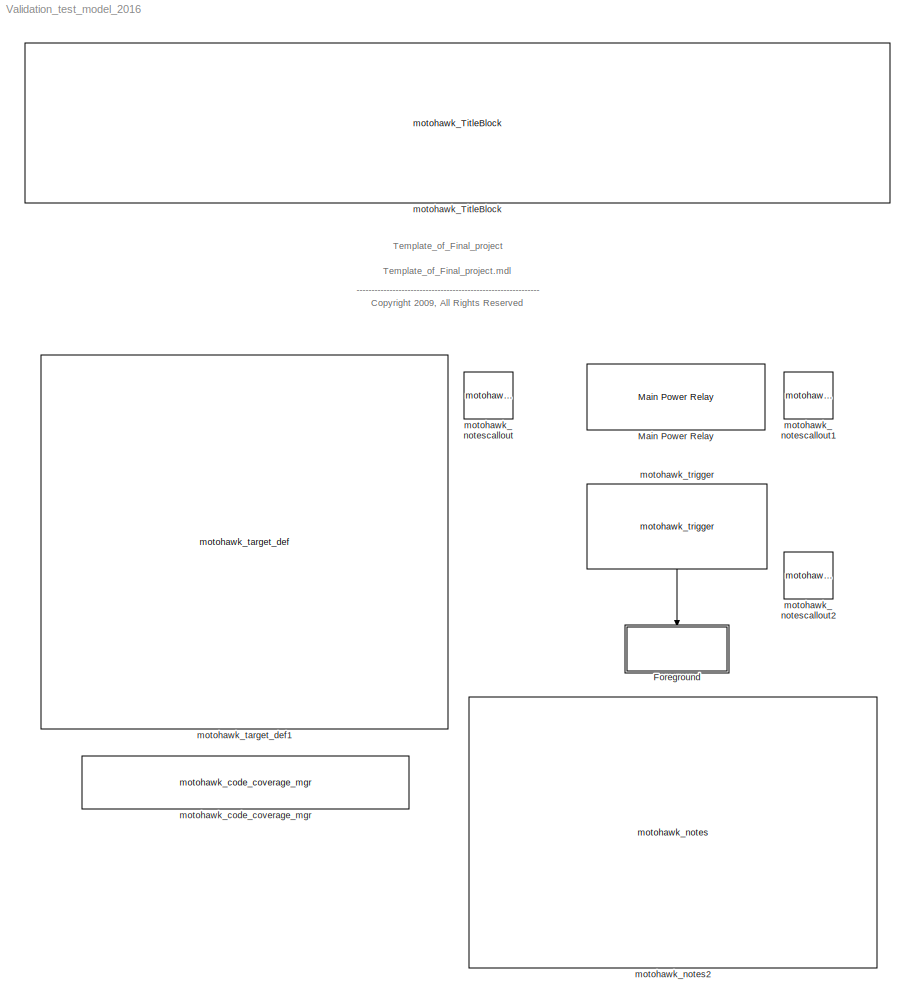
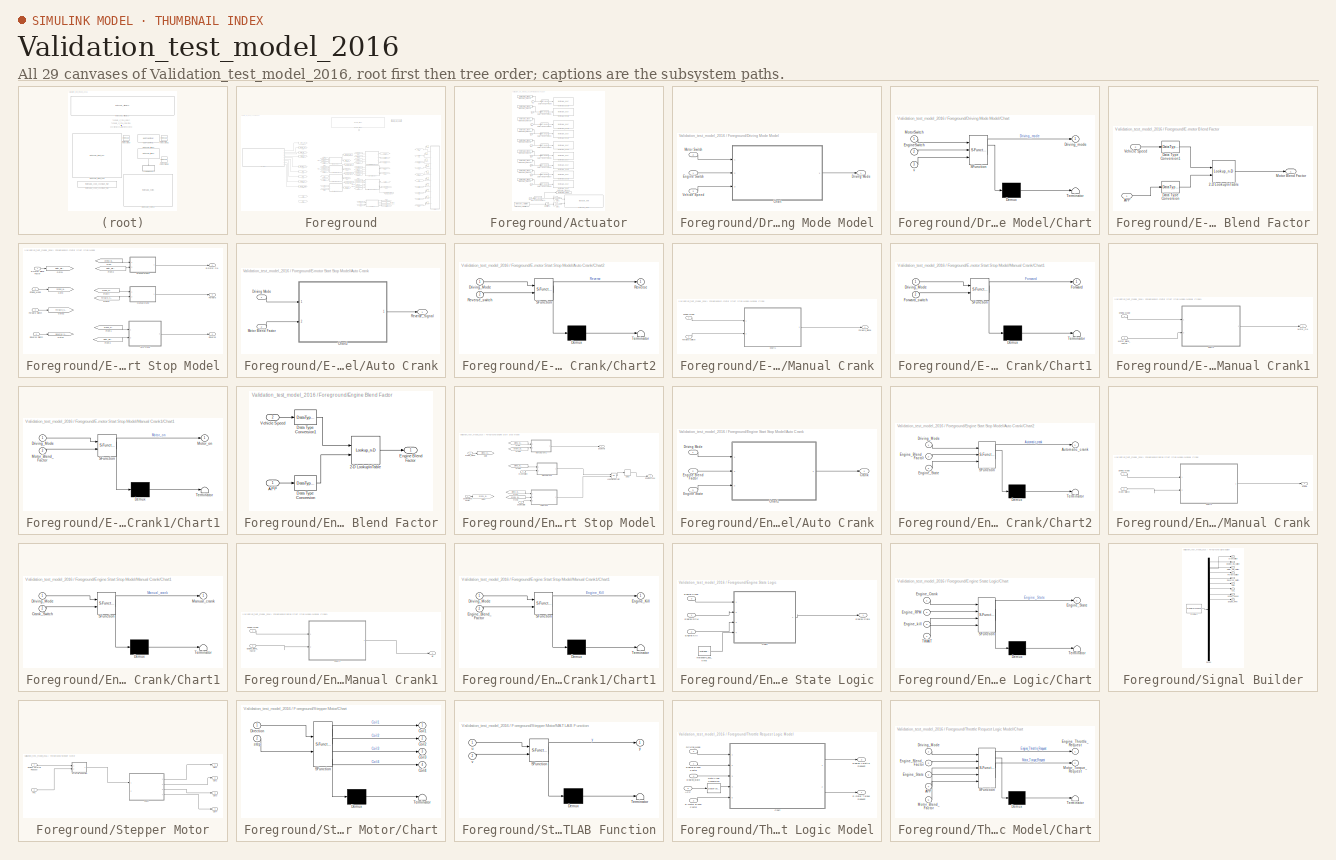
[diagram: thumbnail index - all 29 canvases of the model, root first then tree order]
MODEL Validation_test_model_2016
KIND model
CONFIG InitFcn = try, eval([bdroot '_setup']); catch, eval('model_setup', ''); end
CONFIG PreLoadFcn = try, eval([bdroot '_setup']); catch, eval('model_setup', ''); end
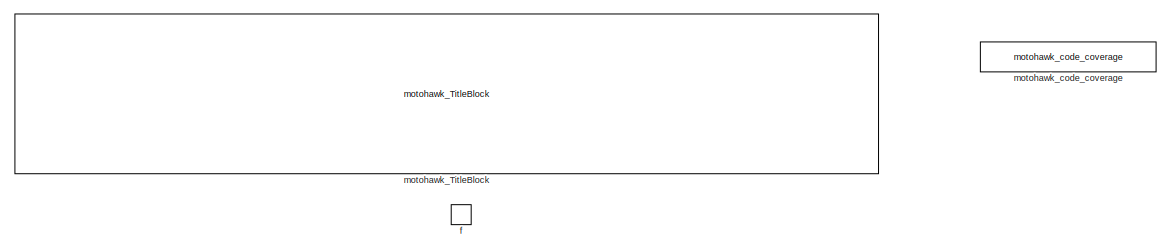
[diagram: Foreground - part 1/4, top center region]
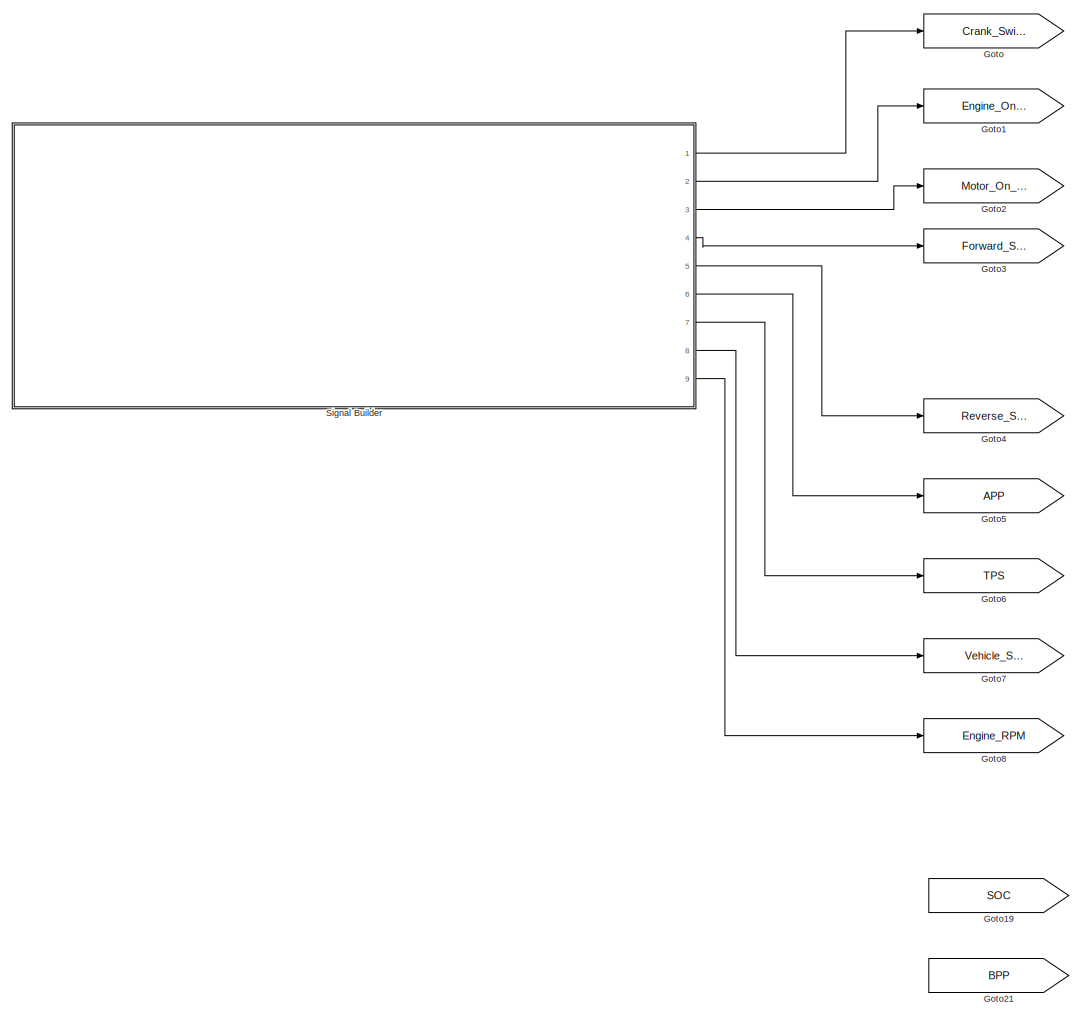
[diagram: Foreground - part 2/4, middle left region]
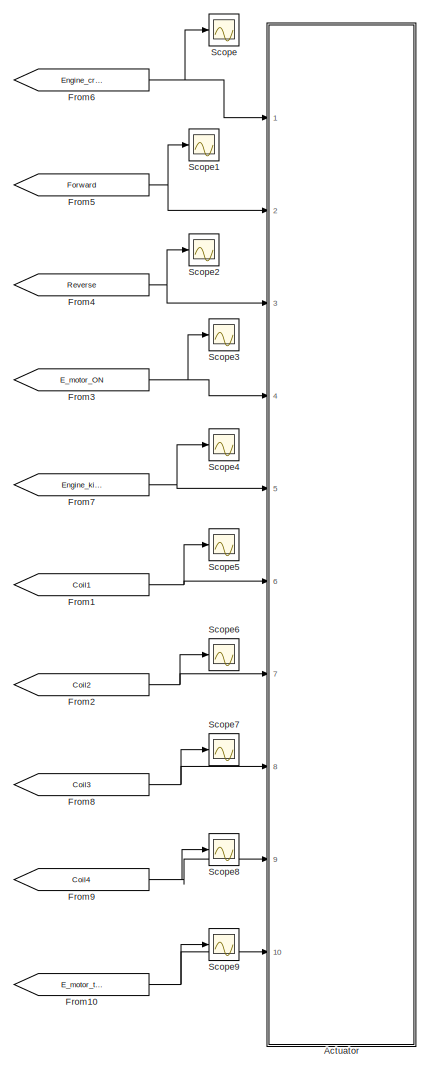
[diagram: Foreground - part 3/4, middle right region]
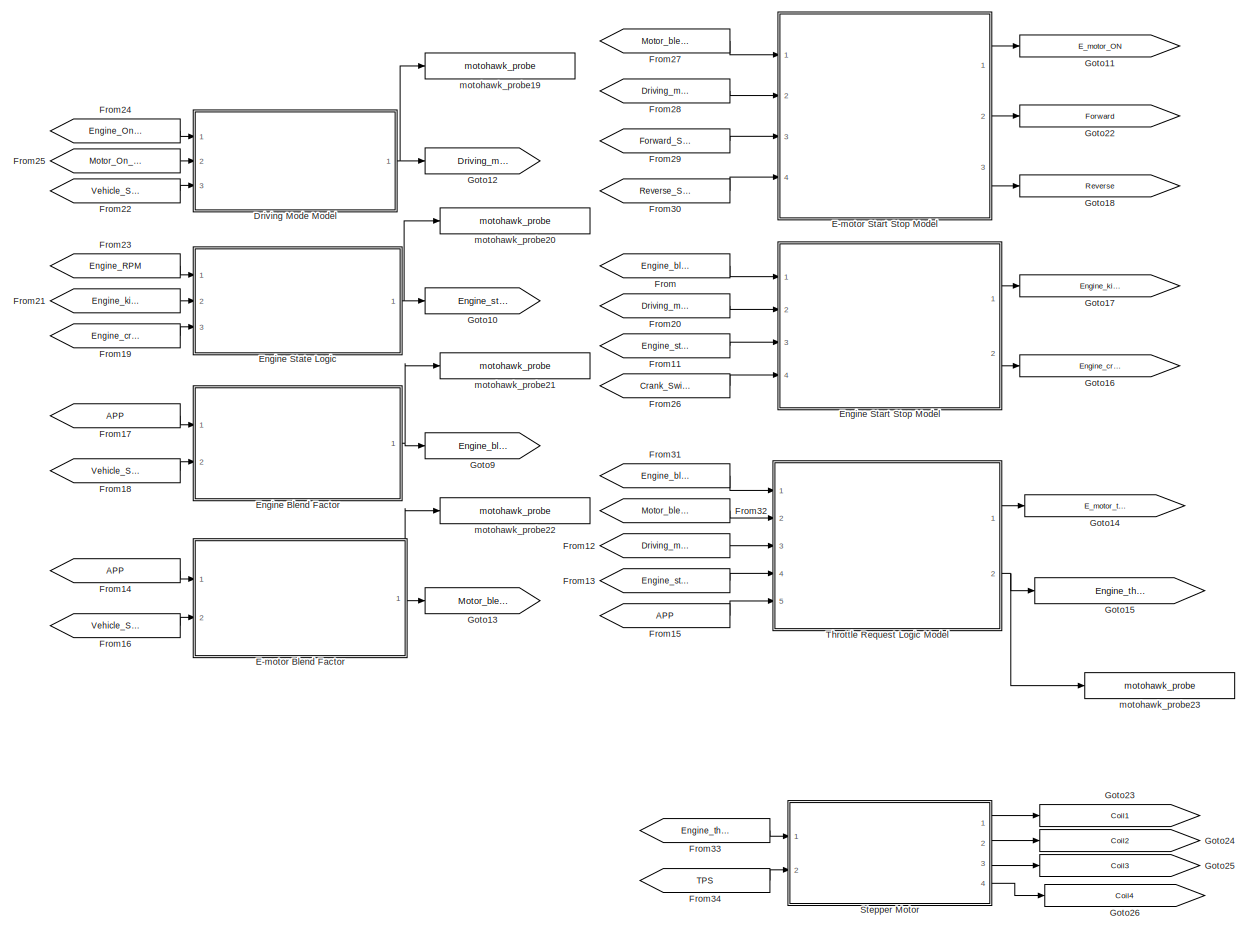
[diagram: Foreground - part 4/4, bottom center region]
BLOCK [SubSystem] Foreground
  Ports = [0, 0, 0, 1]
  RTWFcnNameOpts = Use subsystem name
  RTWFileNameOpts = Use function name
  RTWSystemCode = Nonreusable function
  RequestExecContextInheritance = off
  SID = 1
  TreatAsAtomicUnit = on
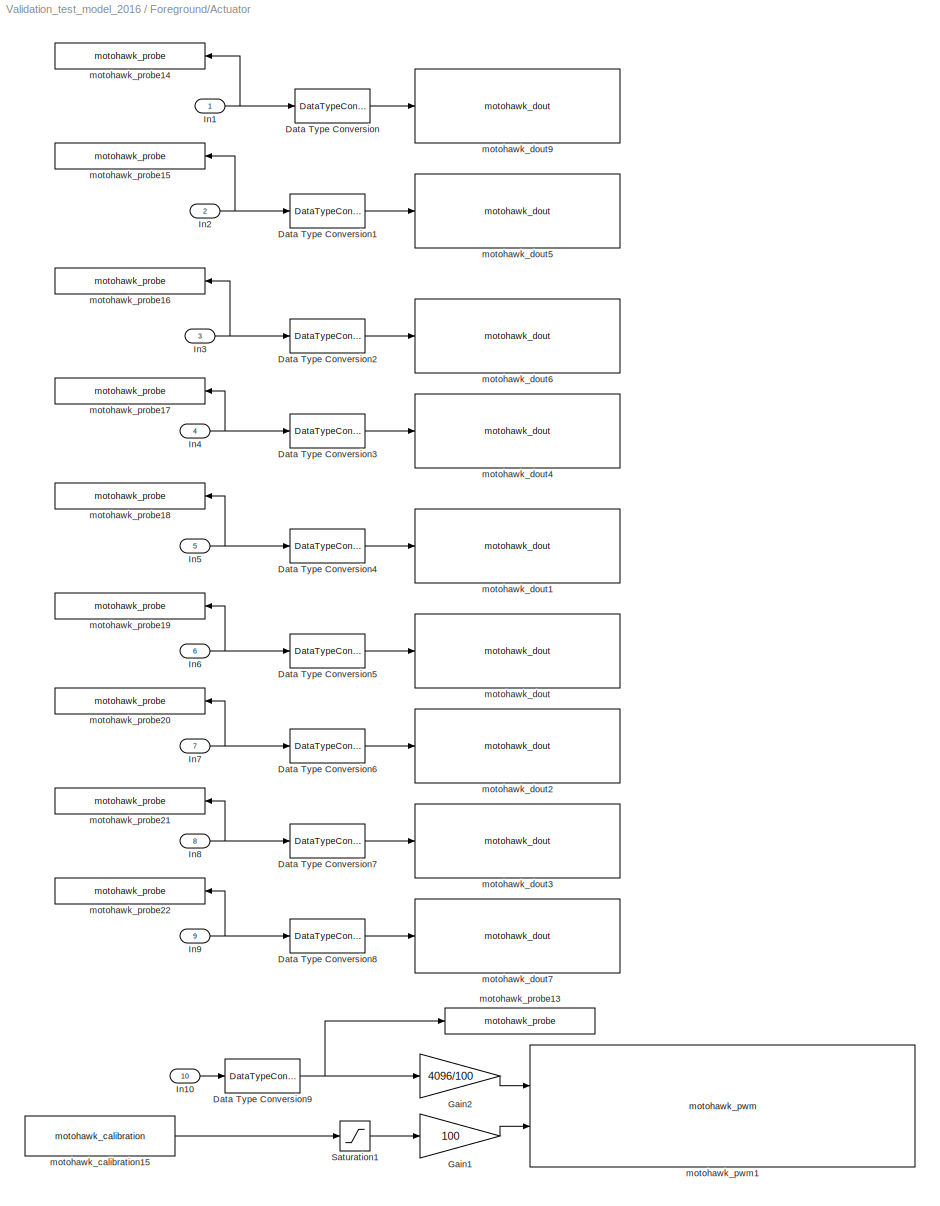
BLOCK [SubSystem] Foreground/Actuator
  Ports = [10]
  RequestExecContextInheritance = off
  SID = 209
BLOCK [DataTypeConversion] Foreground/Actuator/Data Type Conversion
  OutDataTypeStr = boolean
  RndMeth = Floor
  SID = 165
  SaturateOnIntegerOverflow = off
BLOCK [DataTypeConversion] Foreground/Actuator/Data Type Conversion1
  OutDataTypeStr = boolean
  RndMeth = Floor
  SID = 166
  SaturateOnIntegerOverflow = off
BLOCK [DataTypeConversion] Foreground/Actuator/Data Type Conversion2
  OutDataTypeStr = boolean
  RndMeth = Floor
  SID = 167
  SaturateOnIntegerOverflow = off
BLOCK [DataTypeConversion] Foreground/Actuator/Data Type Conversion3
  OutDataTypeStr = boolean
  RndMeth = Floor
  SID = 168
  SaturateOnIntegerOverflow = off
BLOCK [DataTypeConversion] Foreground/Actuator/Data Type Conversion4
  OutDataTypeStr = boolean
  RndMeth = Floor
  SID = 169
  SaturateOnIntegerOverflow = off
BLOCK [DataTypeConversion] Foreground/Actuator/Data Type Conversion5
  OutDataTypeStr = boolean
  RndMeth = Floor
  SID = 170
  SaturateOnIntegerOverflow = off
BLOCK [DataTypeConversion] Foreground/Actuator/Data Type Conversion6
  OutDataTypeStr = boolean
  RndMeth = Floor
  SID = 171
  SaturateOnIntegerOverflow = off
BLOCK [DataTypeConversion] Foreground/Actuator/Data Type Conversion7
  OutDataTypeStr = boolean
  RndMeth = Floor
  SID = 172
  SaturateOnIntegerOverflow = off
BLOCK [DataTypeConversion] Foreground/Actuator/Data Type Conversion8
  OutDataTypeStr = boolean
  RndMeth = Floor
  SID = 173
  SaturateOnIntegerOverflow = off
BLOCK [DataTypeConversion] Foreground/Actuator/Data Type Conversion9
  OutDataTypeStr = int16
  RndMeth = Floor
  SID = 174
  SaturateOnIntegerOverflow = off
BLOCK [Gain] Foreground/Actuator/Gain1
  Gain = 100
  OutDataTypeStr = Inherit: Inherit via back propagation
  ParamDataTypeStr = Inherit: Inherit via internal rule
  SID = 137
  SaturateOnIntegerOverflow = off
BLOCK [Gain] Foreground/Actuator/Gain2
  Gain = 4096/100
  OutDataTypeStr = Inherit: Inherit via back propagation
  ParamDataTypeStr = Inherit: Inherit via internal rule
  SID = 138
  SaturateOnIntegerOverflow = off
BLOCK [Inport] Foreground/Actuator/In1
  IconDisplay = Port number
  SID = 210
BLOCK [Inport] Foreground/Actuator/In10
  IconDisplay = Port number
  Port = 10
  SID = 219
BLOCK [Inport] Foreground/Actuator/In2
  IconDisplay = Port number
  Port = 2
  SID = 211
BLOCK [Inport] Foreground/Actuator/In3
  IconDisplay = Port number
  Port = 3
  SID = 212
BLOCK [Inport] Foreground/Actuator/In4
  IconDisplay = Port number
  Port = 4
  SID = 213
BLOCK [Inport] Foreground/Actuator/In5
  IconDisplay = Port number
  Port = 5
  SID = 214
BLOCK [Inport] Foreground/Actuator/In6
  IconDisplay = Port number
  Port = 6
  SID = 215
BLOCK [Inport] Foreground/Actuator/In7
  IconDisplay = Port number
  Port = 7
  SID = 216
BLOCK [Inport] Foreground/Actuator/In8
  IconDisplay = Port number
  Port = 8
  SID = 217
BLOCK [Inport] Foreground/Actuator/In9
  IconDisplay = Port number
  Port = 9
  SID = 218
BLOCK [Saturate] Foreground/Actuator/Saturation1
  InputPortMap = u0
  LowerLimit = 0
  Ports = [1, 1]
  SID = 141
  UpperLimit = 10000
BLOCK [Reference] Foreground/Actuator/motohawk_calibration15  REF=MotoHawk_lib/Calibration & Probing Blocks/motohawk_calibration
  Ports = [0, 1]
  SID = 142
  SourceBlock = MotoHawk_lib/Calibration & Probing Blocks/motohawk_calibration
  SourceType = MotoHawk Calibration
  col_header_enum = {}
  data_stores = motohawk_sfun_calibration_data_stores
  data_type = Inherit via back propagation
  enum_struct = {'Disabled', 'Enabled'}
  exp = 1
  gain = 1
  help = ''
  max_val = inf
  min_val = -inf
  mototune_group = motohawk_vardec_path(gcb)
  nam = 'Throttle_Frequency'
  name_source = Use Parameter
  offset = 0
  ovr_cals = on
  precision = ''
  read_level = 1
  row_header_enum = {}
  show_more = on
  storage = Calibration
  units = ''
  use_header_enum = off
  use_help_units = off
  use_min_max = off
  use_mototune_group = off
  use_precision = off
  val = 10000
  vector_style = Wide Row
  view_as = Number
  write_level = 1
BLOCK [Reference] Foreground/Actuator/motohawk_dout  REF=MotoHawk_lib/Digital I//O Blocks/motohawk_dout
  Ports = [1]
  SID = 145
  SourceBlock = MotoHawk_lib/Digital I//O Blocks/motohawk_dout
  SourceType = MotoHawk Discrete Output
  group = 'System | I/O Pins | Outputs Config'
  nam = 'DOUT'
  read_level = 1
  resource_name = []
  target = ECU565-128
  text_resource = LSD5
  use_diag = off
  use_vardec = off
  write_level = 1
BLOCK [Reference] Foreground/Actuator/motohawk_dout1  REF=MotoHawk_lib/Digital I//O Blocks/motohawk_dout
  Ports = [1]
  SID = 125
  SourceBlock = MotoHawk_lib/Digital I//O Blocks/motohawk_dout
  SourceType = MotoHawk Discrete Output
  group = 'System | I/O Pins | Outputs Config'
  nam = 'DOUT'
  read_level = 1
  resource_name = []
  target = ECU565-128
  text_resource = LSD9
  use_diag = off
  use_vardec = off
  write_level = 1
BLOCK [Reference] Foreground/Actuator/motohawk_dout2  REF=MotoHawk_lib/Digital I//O Blocks/motohawk_dout
  Ports = [1]
  SID = 146
  SourceBlock = MotoHawk_lib/Digital I//O Blocks/motohawk_dout
  SourceType = MotoHawk Discrete Output
  group = 'System | I/O Pins | Outputs Config'
  nam = 'DOUT'
  read_level = 1
  resource_name = []
  target = ECU565-128
  text_resource = LSD6
  use_diag = off
  use_vardec = off
  write_level = 1
BLOCK [Reference] Foreground/Actuator/motohawk_dout3  REF=MotoHawk_lib/Digital I//O Blocks/motohawk_dout
  Ports = [1]
  SID = 147
  SourceBlock = MotoHawk_lib/Digital I//O Blocks/motohawk_dout
  SourceType = MotoHawk Discrete Output
  group = 'System | I/O Pins | Outputs Config'
  nam = 'DOUT'
  read_level = 1
  resource_name = []
  target = ECU565-128
  text_resource = LSD7
  use_diag = off
  use_vardec = off
  write_level = 1
BLOCK [Reference] Foreground/Actuator/motohawk_dout4  REF=MotoHawk_lib/Digital I//O Blocks/motohawk_dout
  Ports = [1]
  SID = 126
  SourceBlock = MotoHawk_lib/Digital I//O Blocks/motohawk_dout
  SourceType = MotoHawk Discrete Output
  group = 'System | I/O Pins | Outputs Config'
  nam = 'DOUT'
  read_level = 1
  resource_name = []
  target = ECU565-128
  text_resource = LSD4
  use_diag = off
  use_vardec = off
  write_level = 1
BLOCK [Reference] Foreground/Actuator/motohawk_dout5  REF=MotoHawk_lib/Digital I//O Blocks/motohawk_dout
  Ports = [1]
  SID = 127
  SourceBlock = MotoHawk_lib/Digital I//O Blocks/motohawk_dout
  SourceType = MotoHawk Discrete Output
  group = 'System | I/O Pins | Outputs Config'
  nam = 'DOUT'
  read_level = 1
  resource_name = []
  target = ECU565-128
  text_resource = LSD2
  use_diag = off
  use_vardec = off
  write_level = 1
BLOCK [Reference] Foreground/Actuator/motohawk_dout6  REF=MotoHawk_lib/Digital I//O Blocks/motohawk_dout
  Ports = [1]
  SID = 128
  SourceBlock = MotoHawk_lib/Digital I//O Blocks/motohawk_dout
  SourceType = MotoHawk Discrete Output
  group = 'System | I/O Pins | Outputs Config'
  nam = 'DOUT'
  read_level = 1
  resource_name = []
  target = ECU565-128
  text_resource = LSD3
  use_diag = off
  use_vardec = off
  write_level = 1
BLOCK [Reference] Foreground/Actuator/motohawk_dout7  REF=MotoHawk_lib/Digital I//O Blocks/motohawk_dout
  Ports = [1]
  SID = 148
  SourceBlock = MotoHawk_lib/Digital I//O Blocks/motohawk_dout
  SourceType = MotoHawk Discrete Output
  group = 'System | I/O Pins | Outputs Config'
  nam = 'DOUT'
  read_level = 1
  resource_name = []
  target = ECU565-128
  text_resource = LSD8
  use_diag = off
  use_vardec = off
  write_level = 1
BLOCK [Reference] Foreground/Actuator/motohawk_dout9  REF=MotoHawk_lib/Digital I//O Blocks/motohawk_dout
  Ports = [1]
  SID = 129
  SourceBlock = MotoHawk_lib/Digital I//O Blocks/motohawk_dout
  SourceType = MotoHawk Discrete Output
  group = 'System | I/O Pins | Outputs Config'
  nam = 'DOUT'
  read_level = 1
  resource_name = []
  target = ECU565-128
  text_resource = LSD1
  use_diag = off
  use_vardec = off
  write_level = 1
BLOCK [Reference] Foreground/Actuator/motohawk_probe13  REF=MotoHawk_lib/Calibration & Probing Blocks/motohawk_probe
  Ports = [1]
  SID = 143
  SourceBlock = MotoHawk_lib/Calibration & Probing Blocks/motohawk_probe
  SourceType = MotoHawk Probe
  col_header_enum = {}
  enum_struct = {'Disabled', 'Enabled'}
  exp = 1
  gain = 1
  help = ''
  max_val = inf
  min_val = -inf
  mototune_group = motohawk_vardec_path(gcb)
  nam = 'Emotor_Throttle_Request'
  name_source = Use Parameter
  offset = 0
  precision = ''
  read_level = 1
  row_header_enum = {}
  show_more = off
  units = ''
  use_header_enum = off
  use_help_units = off
  use_min_max = off
  use_mototune_group = off
  use_precision = off
  vector_style = Wide Row
  view_as = Number
BLOCK [Reference] Foreground/Actuator/motohawk_probe14  REF=MotoHawk_lib/Calibration & Probing Blocks/motohawk_probe
  Ports = [1]
  SID = 154
  SourceBlock = MotoHawk_lib/Calibration & Probing Blocks/motohawk_probe
  SourceType = MotoHawk Probe
  col_header_enum = {}
  enum_struct = {'Disabled', 'Enabled'}
  exp = 1
  gain = 1
  help = ''
  max_val = inf
  min_val = -inf
  mototune_group = motohawk_vardec_path(gcb)
  nam = 'Engine_Crank'
  name_source = Use Parameter
  offset = 0
  precision = ''
  read_level = 1
  row_header_enum = {}
  show_more = off
  units = ''
  use_header_enum = off
  use_help_units = off
  use_min_max = off
  use_mototune_group = off
  use_precision = off
  vector_style = Wide Row
  view_as = Number
BLOCK [Reference] Foreground/Actuator/motohawk_probe15  REF=MotoHawk_lib/Calibration & Probing Blocks/motohawk_probe
  Ports = [1]
  SID = 155
  SourceBlock = MotoHawk_lib/Calibration & Probing Blocks/motohawk_probe
  SourceType = MotoHawk Probe
  col_header_enum = {}
  enum_struct = {'Disabled', 'Enabled'}
  exp = 1
  gain = 1
  help = ''
  max_val = inf
  min_val = -inf
  mototune_group = motohawk_vardec_path(gcb)
  nam = 'Foward'
  name_source = Use Parameter
  offset = 0
  precision = ''
  read_level = 1
  row_header_enum = {}
  show_more = off
  units = ''
  use_header_enum = off
  use_help_units = off
  use_min_max = off
  use_mototune_group = off
  use_precision = off
  vector_style = Wide Row
  view_as = Number
BLOCK [Reference] Foreground/Actuator/motohawk_probe16  REF=MotoHawk_lib/Calibration & Probing Blocks/motohawk_probe
  Ports = [1]
  SID = 156
  SourceBlock = MotoHawk_lib/Calibration & Probing Blocks/motohawk_probe
  SourceType = MotoHawk Probe
  col_header_enum = {}
  enum_struct = {'Disabled', 'Enabled'}
  exp = 1
  gain = 1
  help = ''
  max_val = inf
  min_val = -inf
  mototune_group = motohawk_vardec_path(gcb)
  nam = 'Reverse'
  name_source = Use Parameter
  offset = 0
  precision = ''
  read_level = 1
  row_header_enum = {}
  show_more = off
  units = ''
  use_header_enum = off
  use_help_units = off
  use_min_max = off
  use_mototune_group = off
  use_precision = off
  vector_style = Wide Row
  view_as = Number
BLOCK [Reference] Foreground/Actuator/motohawk_probe17  REF=MotoHawk_lib/Calibration & Probing Blocks/motohawk_probe
  Ports = [1]
  SID = 157
  SourceBlock = MotoHawk_lib/Calibration & Probing Blocks/motohawk_probe
  SourceType = MotoHawk Probe
  col_header_enum = {}
  enum_struct = {'Disabled', 'Enabled'}
  exp = 1
  gain = 1
  help = ''
  max_val = inf
  min_val = -inf
  mototune_group = motohawk_vardec_path(gcb)
  nam = 'E_Motor_On'
  name_source = Use Parameter
  offset = 0
  precision = ''
  read_level = 1
  row_header_enum = {}
  show_more = off
  units = ''
  use_header_enum = off
  use_help_units = off
  use_min_max = off
  use_mototune_group = off
  use_precision = off
  vector_style = Wide Row
  view_as = Number
BLOCK [Reference] Foreground/Actuator/motohawk_probe18  REF=MotoHawk_lib/Calibration & Probing Blocks/motohawk_probe
  Ports = [1]
  SID = 158
  SourceBlock = MotoHawk_lib/Calibration & Probing Blocks/motohawk_probe
  SourceType = MotoHawk Probe
  col_header_enum = {}
  enum_struct = {'Disabled', 'Enabled'}
  exp = 1
  gain = 1
  help = ''
  max_val = inf
  min_val = -inf
  mototune_group = motohawk_vardec_path(gcb)
  nam = 'Engine_Kill'
  name_source = Use Parameter
  offset = 0
  precision = ''
  read_level = 1
  row_header_enum = {}
  show_more = off
  units = ''
  use_header_enum = off
  use_help_units = off
  use_min_max = off
  use_mototune_group = off
  use_precision = off
  vector_style = Wide Row
  view_as = Number
BLOCK [Reference] Foreground/Actuator/motohawk_probe19  REF=MotoHawk_lib/Calibration & Probing Blocks/motohawk_probe
  Ports = [1]
  SID = 159
  SourceBlock = MotoHawk_lib/Calibration & Probing Blocks/motohawk_probe
  SourceType = MotoHawk Probe
  col_header_enum = {}
  enum_struct = {'Disabled', 'Enabled'}
  exp = 1
  gain = 1
  help = ''
  max_val = inf
  min_val = -inf
  mototune_group = motohawk_vardec_path(gcb)
  nam = 'Coil_1'
  name_source = Use Parameter
  offset = 0
  precision = ''
  read_level = 1
  row_header_enum = {}
  show_more = off
  units = ''
  use_header_enum = off
  use_help_units = off
  use_min_max = off
  use_mototune_group = off
  use_precision = off
  vector_style = Wide Row
  view_as = Number
BLOCK [Reference] Foreground/Actuator/motohawk_probe20  REF=MotoHawk_lib/Calibration & Probing Blocks/motohawk_probe
  Ports = [1]
  SID = 161
  SourceBlock = MotoHawk_lib/Calibration & Probing Blocks/motohawk_probe
  SourceType = MotoHawk Probe
  col_header_enum = {}
  enum_struct = {'Disabled', 'Enabled'}
  exp = 1
  gain = 1
  help = ''
  max_val = inf
  min_val = -inf
  mototune_group = motohawk_vardec_path(gcb)
  nam = 'Coil_2'
  name_source = Use Parameter
  offset = 0
  precision = ''
  read_level = 1
  row_header_enum = {}
  show_more = off
  units = ''
  use_header_enum = off
  use_help_units = off
  use_min_max = off
  use_mototune_group = off
  use_precision = off
  vector_style = Wide Row
  view_as = Number
BLOCK [Reference] Foreground/Actuator/motohawk_probe21  REF=MotoHawk_lib/Calibration & Probing Blocks/motohawk_probe
  Ports = [1]
  SID = 162
  SourceBlock = MotoHawk_lib/Calibration & Probing Blocks/motohawk_probe
  SourceType = MotoHawk Probe
  col_header_enum = {}
  enum_struct = {'Disabled', 'Enabled'}
  exp = 1
  gain = 1
  help = ''
  max_val = inf
  min_val = -inf
  mototune_group = motohawk_vardec_path(gcb)
  nam = 'Coil_3'
  name_source = Use Parameter
  offset = 0
  precision = ''
  read_level = 1
  row_header_enum = {}
  show_more = off
  units = ''
  use_header_enum = off
  use_help_units = off
  use_min_max = off
  use_mototune_group = off
  use_precision = off
  vector_style = Wide Row
  view_as = Number
BLOCK [Reference] Foreground/Actuator/motohawk_probe22  REF=MotoHawk_lib/Calibration & Probing Blocks/motohawk_probe
  Ports = [1]
  SID = 163
  SourceBlock = MotoHawk_lib/Calibration & Probing Blocks/motohawk_probe
  SourceType = MotoHawk Probe
  col_header_enum = {}
  enum_struct = {'Disabled', 'Enabled'}
  exp = 1
  gain = 1
  help = ''
  max_val = inf
  min_val = -inf
  mototune_group = motohawk_vardec_path(gcb)
  nam = 'Coil_4'
  name_source = Use Parameter
  offset = 0
  precision = ''
  read_level = 1
  row_header_enum = {}
  show_more = off
  units = ''
  use_header_enum = off
  use_help_units = off
  use_min_max = off
  use_mototune_group = off
  use_precision = off
  vector_style = Wide Row
  view_as = Number
BLOCK [Reference] Foreground/Actuator/motohawk_pwm1  REF=MotoHawk_lib/Analog I//O Blocks/motohawk_pwm
  Ports = [2]
  SID = 144
  SourceBlock = MotoHawk_lib/Analog I//O Blocks/motohawk_pwm
  SourceType = MotoHawk PWM Output
  freq_mode = -1
  group = 'System | I/O Pins | Outputs Config'
  max_freq = 42949672.96
  min_freq = 2
  nam = 'PWM'
  output_current = off
  output_fault_status = off
  read_level = 1
  res_name = 'Emotor_Throttle'
  target = ECU565-128
  text_resource = EST 1
  use_brake = off
  use_child = off
  use_enable = off
  use_max_freq = off
  use_vardec = off
  write_level = 1
BLOCK [SubSystem] Foreground/Driving Mode Model
  Ports = [3, 1]
  RequestExecContextInheritance = off
  SID = 649
BLOCK [SubSystem] Foreground/Driving Mode Model/Chart
  ErrorFcn = Stateflow.Translate.translate
  PermitHierarchicalResolution = ExplicitOnly
  Ports = [3, 1]
  RequestExecContextInheritance = off
  SFBlockType = Chart
  SID = 653
  TreatAsAtomicUnit = on
BLOCK [Demux] Foreground/Driving Mode Model/Chart/ Demux 
  Outputs = 1
  Ports = [1, 1]
  SID = 653::95
BLOCK [S-Function] Foreground/Driving Mode Model/Chart/ SFunction 
  EnableBusSupport = on
  FunctionName = sf_sfun
  PortCounts = [3 2]
  Ports = [3, 2]
  SID = 653::94
  Tag = Stateflow S-Function Validation_test_model_2016 3
BLOCK [Terminator] Foreground/Driving Mode Model/Chart/ Terminator 
  SID = 653::96
BLOCK [Outport] Foreground/Driving Mode Model/Chart/Driving_mode
  IconDisplay = Port number
  SID = 653::93
BLOCK [Inport] Foreground/Driving Mode Model/Chart/EngineSwitch
  IconDisplay = Port number
  Port = 2
  SID = 653::91
BLOCK [Inport] Foreground/Driving Mode Model/Chart/MotorSwitch
  IconDisplay = Port number
  SID = 653::89
BLOCK [Inport] Foreground/Driving Mode Model/Chart/v
  IconDisplay = Port number
  Port = 3
  SID = 653::92
BLOCK [Outport] Foreground/Driving Mode Model/Driving Mode
  IconDisplay = Port number
  SID = 654
BLOCK [Inport] Foreground/Driving Mode Model/Engine Switch
  IconDisplay = Port number
  SID = 650
BLOCK [Inport] Foreground/Driving Mode Model/Motor Switch
  IconDisplay = Port number
  Port = 2
  SID = 651
BLOCK [Inport] Foreground/Driving Mode Model/Vehicle Speed
  IconDisplay = Port number
  Port = 3
  SID = 652
BLOCK [SubSystem] Foreground/E-motor Blend Factor
  Ports = [2, 1]
  RequestExecContextInheritance = off
  SID = 655
BLOCK [Lookup_n-D] Foreground/E-motor Blend Factor/2-D Lookup\nTable
  BreakpointsForDimension1 = a
  BreakpointsForDimension2 = b
  InternalRulePriority = Speed
  Ports = [2, 1]
  RndMeth = Simplest
  SID = 658
  Table = c
BLOCK [Inport] Foreground/E-motor Blend Factor/APP
  IconDisplay = Port number
  SID = 656
BLOCK [DataTypeConversion] Foreground/E-motor Blend Factor/Data Type Conversion
  RndMeth = Floor
  SID = 659
  SaturateOnIntegerOverflow = off
BLOCK [DataTypeConversion] Foreground/E-motor Blend Factor/Data Type Conversion1
  RndMeth = Floor
  SID = 660
  SaturateOnIntegerOverflow = off
BLOCK [Outport] Foreground/E-motor Blend Factor/Motor Blend Factor
  IconDisplay = Port number
  SID = 661
BLOCK [Inport] Foreground/E-motor Blend Factor/Vehicle Speed
  IconDisplay = Port number
  Port = 2
  SID = 657
BLOCK [SubSystem] Foreground/E-motor Start Stop Model
  Ports = [4, 3]
  RequestExecContextInheritance = off
  SID = 662
BLOCK [SubSystem] Foreground/E-motor Start Stop Model/Auto Crank
  Ports = [2, 1]
  RequestExecContextInheritance = off
  SID = 667
BLOCK [SubSystem] Foreground/E-motor Start Stop Model/Auto Crank/Chart2
  ErrorFcn = Stateflow.Translate.translate
  PermitHierarchicalResolution = ExplicitOnly
  Ports = [2, 1]
  RequestExecContextInheritance = off
  SFBlockType = Chart
  SID = 670
  TreatAsAtomicUnit = on
BLOCK [Demux] Foreground/E-motor Start Stop Model/Auto Crank/Chart2/ Demux 
  Outputs = 1
  Ports = [1, 1]
  SID = 670::81
BLOCK [S-Function] Foreground/E-motor Start Stop Model/Auto Crank/Chart2/ SFunction 
  EnableBusSupport = on
  FunctionName = sf_sfun
  PortCounts = [2 2]
  Ports = [2, 2]
  SID = 670::80
  Tag = Stateflow S-Function Validation_test_model_2016 2
BLOCK [Terminator] Foreground/E-motor Start Stop Model/Auto Crank/Chart2/ Terminator 
  SID = 670::82
BLOCK [Inport] Foreground/E-motor Start Stop Model/Auto Crank/Chart2/Driving_Mode
  IconDisplay = Port number
  SID = 670::77
BLOCK [Outport] Foreground/E-motor Start Stop Model/Auto Crank/Chart2/Reverse
  IconDisplay = Port number
  SID = 670::79
BLOCK [Inport] Foreground/E-motor Start Stop Model/Auto Crank/Chart2/Reverse_switch
  IconDisplay = Port number
  Port = 2
  SID = 670::78
BLOCK [Inport] Foreground/E-motor Start Stop Model/Auto Crank/Driving Mode
  IconDisplay = Port number
  SID = 668
BLOCK [Inport] Foreground/E-motor Start Stop Model/Auto Crank/Motor Blend Factor
  IconDisplay = Port number
  Port = 2
  SID = 669
BLOCK [Outport] Foreground/E-motor Start Stop Model/Auto Crank/Reverse_Signal
  IconDisplay = Port number
  SID = 671
BLOCK [Inport] Foreground/E-motor Start Stop Model/Driving_Mode
  IconDisplay = Port number
  Port = 2
  SID = 664
BLOCK [Inport] Foreground/E-motor Start Stop Model/E-motor Blend Factor
  IconDisplay = Port number
  SID = 663
BLOCK [Outport] Foreground/E-motor Start Stop Model/E-motor ON
  IconDisplay = Port number
  SID = 692
BLOCK [Outport] Foreground/E-motor Start Stop Model/Forward
  IconDisplay = Port number
  Port = 2
  SID = 693
BLOCK [Inport] Foreground/E-motor Start Stop Model/Forward Switch
  IconDisplay = Port number
  Port = 3
  SID = 665
BLOCK [From] Foreground/E-motor Start Stop Model/From
  GotoTag = Driving_Mode
  SID = 672
BLOCK [From] Foreground/E-motor Start Stop Model/From1
  GotoTag = Driving_Mode
  SID = 673
BLOCK [From] Foreground/E-motor Start Stop Model/From2
  GotoTag = Motor_Blend_Factor
  SID = 674
BLOCK [From] Foreground/E-motor Start Stop Model/From3
  GotoTag = Motor_Blend_Factor
  SID = 675
BLOCK [From] Foreground/E-motor Start Stop Model/From4
  GotoTag = Driving_Mode
  SID = 676
BLOCK [From] Foreground/E-motor Start Stop Model/From5
  GotoTag = Forward_Switch
  SID = 677
BLOCK [Goto] Foreground/E-motor Start Stop Model/Goto
  GotoTag = Driving_Mode
  SID = 678
BLOCK [Goto] Foreground/E-motor Start Stop Model/Goto1
  GotoTag = Motor_Blend_Factor
  SID = 679
BLOCK [Goto] Foreground/E-motor Start Stop Model/Goto2
  GotoTag = Forward_Switch
  SID = 680
BLOCK [Goto] Foreground/E-motor Start Stop Model/Goto3
  GotoTag = Reverse_Switch
  SID = 681
BLOCK [SubSystem] Foreground/E-motor Start Stop Model/Manual Crank
  Ports = [2, 1]
  RequestExecContextInheritance = off
  SID = 682
BLOCK [SubSystem] Foreground/E-motor Start Stop Model/Manual Crank/Chart1
  ErrorFcn = Stateflow.Translate.translate
  PermitHierarchicalResolution = ExplicitOnly
  Ports = [2, 1]
  RequestExecContextInheritance = off
  SFBlockType = Chart
  SID = 685
  TreatAsAtomicUnit = on
BLOCK [Demux] Foreground/E-motor Start Stop Model/Manual Crank/Chart1/ Demux 
  Outputs = 1
  Ports = [1, 1]
  SID = 685::81
BLOCK [S-Function] Foreground/E-motor Start Stop Model/Manual Crank/Chart1/ SFunction 
  EnableBusSupport = on
  FunctionName = sf_sfun
  PortCounts = [2 2]
  Ports = [2, 2]
  SID = 685::80
  Tag = Stateflow S-Function Validation_test_model_2016 5
BLOCK [Terminator] Foreground/E-motor Start Stop Model/Manual Crank/Chart1/ Terminator 
  SID = 685::82
BLOCK [Inport] Foreground/E-motor Start Stop Model/Manual Crank/Chart1/Driving_Mode
  IconDisplay = Port number
  SID = 685::77
BLOCK [Outport] Foreground/E-motor Start Stop Model/Manual Crank/Chart1/Forward
  IconDisplay = Port number
  SID = 685::79
BLOCK [Inport] Foreground/E-motor Start Stop Model/Manual Crank/Chart1/Forward_switch
  IconDisplay = Port number
  Port = 2
  SID = 685::78
BLOCK [Inport] Foreground/E-motor Start Stop Model/Manual Crank/Driving Mode
  IconDisplay = Port number
  SID = 683
BLOCK [Inport] Foreground/E-motor Start Stop Model/Manual Crank/Forward Switch
  IconDisplay = Port number
  Port = 2
  SID = 684
BLOCK [Outport] Foreground/E-motor Start Stop Model/Manual Crank/Forward_Signal
  IconDisplay = Port number
  SID = 686
BLOCK [SubSystem] Foreground/E-motor Start Stop Model/Manual Crank1
  Ports = [2, 1]
  RequestExecContextInheritance = off
  SID = 687
BLOCK [SubSystem] Foreground/E-motor Start Stop Model/Manual Crank1/Chart1
  ErrorFcn = Stateflow.Translate.translate
  PermitHierarchicalResolution = ExplicitOnly
  Ports = [2, 1]
  RequestExecContextInheritance = off
  SFBlockType = Chart
  SID = 690
  TreatAsAtomicUnit = on
BLOCK [Demux] Foreground/E-motor Start Stop Model/Manual Crank1/Chart1/ Demux 
  Outputs = 1
  Ports = [1, 1]
  SID = 690::81
BLOCK [S-Function] Foreground/E-motor Start Stop Model/Manual Crank1/Chart1/ SFunction 
  EnableBusSupport = on
  FunctionName = sf_sfun
  PortCounts = [2 2]
  Ports = [2, 2]
  SID = 690::80
  Tag = Stateflow S-Function Validation_test_model_2016 6
BLOCK [Terminator] Foreground/E-motor Start Stop Model/Manual Crank1/Chart1/ Terminator 
  SID = 690::82
BLOCK [Inport] Foreground/E-motor Start Stop Model/Manual Crank1/Chart1/Driving_Mode
  IconDisplay = Port number
  SID = 690::77
BLOCK [Inport] Foreground/E-motor Start Stop Model/Manual Crank1/Chart1/Motor_Blend_Factor
  IconDisplay = Port number
  Port = 2
  SID = 690::78
BLOCK [Outport] Foreground/E-motor Start Stop Model/Manual Crank1/Chart1/Motor_on
  IconDisplay = Port number
  SID = 690::79
BLOCK [Inport] Foreground/E-motor Start Stop Model/Manual Crank1/Driving Mode
  IconDisplay = Port number
  SID = 688
BLOCK [Inport] Foreground/E-motor Start Stop Model/Manual Crank1/Motor_Blend_Factor
  IconDisplay = Port number
  Port = 2
  SID = 689
BLOCK [Outport] Foreground/E-motor Start Stop Model/Manual Crank1/Motor_ON
  IconDisplay = Port number
  SID = 691
BLOCK [Outport] Foreground/E-motor Start Stop Model/Reverse
  IconDisplay = Port number
  Port = 3
  SID = 694
BLOCK [Inport] Foreground/E-motor Start Stop Model/Reverse Switch
  IconDisplay = Port number
  Port = 4
  SID = 666
BLOCK [SubSystem] Foreground/Engine Blend Factor
  Ports = [2, 1]
  RequestExecContextInheritance = off
  SID = 695
BLOCK [Lookup_n-D] Foreground/Engine Blend Factor/2-D Lookup\nTable
  BreakpointsForDimension1 = d
  BreakpointsForDimension2 = e
  InternalRulePriority = Speed
  Ports = [2, 1]
  RndMeth = Simplest
  SID = 698
  Table = f
BLOCK [Inport] Foreground/Engine Blend Factor/APP
  IconDisplay = Port number
  SID = 696
BLOCK [DataTypeConversion] Foreground/Engine Blend Factor/Data Type Conversion
  RndMeth = Floor
  SID = 699
  SaturateOnIntegerOverflow = off
BLOCK [DataTypeConversion] Foreground/Engine Blend Factor/Data Type Conversion1
  RndMeth = Floor
  SID = 700
  SaturateOnIntegerOverflow = off
BLOCK [Outport] Foreground/Engine Blend Factor/Engine Blend Factor
  IconDisplay = Port number
  SID = 701
BLOCK [Inport] Foreground/Engine Blend Factor/Vehicle Speed
  IconDisplay = Port number
  Port = 2
  SID = 697
BLOCK [SubSystem] Foreground/Engine Start Stop Model
  Ports = [4, 2]
  RequestExecContextInheritance = off
  SID = 702
BLOCK [SubSystem] Foreground/Engine Start Stop Model/Auto Crank
  Ports = [3, 1]
  RequestExecContextInheritance = off
  SID = 707
BLOCK [SubSystem] Foreground/Engine Start Stop Model/Auto Crank/Chart2
  ErrorFcn = Stateflow.Translate.translate
  PermitHierarchicalResolution = ExplicitOnly
  Ports = [3, 1]
  RequestExecContextInheritance = off
  SFBlockType = Chart
  SID = 711
  TreatAsAtomicUnit = on
BLOCK [Demux] Foreground/Engine Start Stop Model/Auto Crank/Chart2/ Demux 
  Outputs = 1
  Ports = [1, 1]
  SID = 711::82
BLOCK [S-Function] Foreground/Engine Start Stop Model/Auto Crank/Chart2/ SFunction 
  EnableBusSupport = on
  FunctionName = sf_sfun
  PortCounts = [3 2]
  Ports = [3, 2]
  SID = 711::81
  Tag = Stateflow S-Function Validation_test_model_2016 9
BLOCK [Terminator] Foreground/Engine Start Stop Model/Auto Crank/Chart2/ Terminator 
  SID = 711::83
BLOCK [Outport] Foreground/Engine Start Stop Model/Auto Crank/Chart2/Automatic_crank
  IconDisplay = Port number
  SID = 711::79
BLOCK [Inport] Foreground/Engine Start Stop Model/Auto Crank/Chart2/Driving_Mode
  IconDisplay = Port number
  SID = 711::77
BLOCK [Inport] Foreground/Engine Start Stop Model/Auto Crank/Chart2/Engine_Blend_Factor
  IconDisplay = Port number
  Port = 2
  SID = 711::78
BLOCK [Inport] Foreground/Engine Start Stop Model/Auto Crank/Chart2/Engine_State
  IconDisplay = Port number
  Port = 3
  SID = 711::80
BLOCK [Outport] Foreground/Engine Start Stop Model/Auto Crank/Crank
  IconDisplay = Port number
  SID = 712
BLOCK [Inport] Foreground/Engine Start Stop Model/Auto Crank/Driving Mode
  IconDisplay = Port number
  SID = 708
BLOCK [Inport] Foreground/Engine Start Stop Model/Auto Crank/Engine Blend Factor
  IconDisplay = Port number
  Port = 2
  SID = 709
BLOCK [Inport] Foreground/Engine Start Stop Model/Auto Crank/Engine State
  IconDisplay = Port number
  Port = 3
  SID = 710
BLOCK [Inport] Foreground/Engine Start Stop Model/Crank Switch
  IconDisplay = Port number
  Port = 4
  SID = 706
BLOCK [Delay] Foreground/Engine Start Stop Model/Delay
  DelayLength = 1
  InitialCondition = 0
  InputPortMap = u0
  Ports = [1, 1]
  SID = 713
BLOCK [Inport] Foreground/Engine Start Stop Model/Driving_Mode
  IconDisplay = Port number
  Port = 2
  SID = 704
BLOCK [Inport] Foreground/Engine Start Stop Model/Engine Blend Factor
  IconDisplay = Port number
  SID = 703
BLOCK [Outport] Foreground/Engine Start Stop Model/Engine Crank
  IconDisplay = Port number
  Port = 2
  SID = 733
BLOCK [Outport] Foreground/Engine Start Stop Model/Engine Kill
  IconDisplay = Port number
  SID = 732
BLOCK [Inport] Foreground/Engine Start Stop Model/Engine State
  IconDisplay = Port number
  Port = 3
  SID = 705
BLOCK [From] Foreground/Engine Start Stop Model/From
  GotoTag = Driving_Mode
  SID = 714
BLOCK [From] Foreground/Engine Start Stop Model/From1
  GotoTag = Driving_Mode
  SID = 715
BLOCK [From] Foreground/Engine Start Stop Model/From2
  GotoTag = Engine_Blend_Factor
  SID = 716
BLOCK [From] Foreground/Engine Start Stop Model/From3
  GotoTag = Engine_Blend_Factor
  SID = 717
BLOCK [From] Foreground/Engine Start Stop Model/From4
  GotoTag = Driving_Mode
  SID = 718
BLOCK [Goto] Foreground/Engine Start Stop Model/Goto
  GotoTag = Driving_Mode
  SID = 719
BLOCK [Goto] Foreground/Engine Start Stop Model/Goto1
  GotoTag = Engine_Blend_Factor
  SID = 720
BLOCK [Logic] Foreground/Engine Start Stop Model/Logical\nOperator
  AllPortsSameDT = off
  Operator = OR
  OutDataTypeStr = boolean
  Ports = [2, 1]
  SID = 721
BLOCK [SubSystem] Foreground/Engine Start Stop Model/Manual Crank
  Ports = [2, 1]
  RequestExecContextInheritance = off
  SID = 722
BLOCK [SubSystem] Foreground/Engine Start Stop Model/Manual Crank/Chart1
  ErrorFcn = Stateflow.Translate.translate
  PermitHierarchicalResolution = ExplicitOnly
  Ports = [2, 1]
  RequestExecContextInheritance = off
  SFBlockType = Chart
  SID = 725
  TreatAsAtomicUnit = on
BLOCK [Demux] Foreground/Engine Start Stop Model/Manual Crank/Chart1/ Demux 
  Outputs = 1
  Ports = [1, 1]
  SID = 725::81
BLOCK [S-Function] Foreground/Engine Start Stop Model/Manual Crank/Chart1/ SFunction 
  EnableBusSupport = on
  FunctionName = sf_sfun
  PortCounts = [2 2]
  Ports = [2, 2]
  SID = 725::80
  Tag = Stateflow S-Function Validation_test_model_2016 8
BLOCK [Terminator] Foreground/Engine Start Stop Model/Manual Crank/Chart1/ Terminator 
  SID = 725::82
BLOCK [Inport] Foreground/Engine Start Stop Model/Manual Crank/Chart1/Crank_Switch
  IconDisplay = Port number
  Port = 2
  SID = 725::78
BLOCK [Inport] Foreground/Engine Start Stop Model/Manual Crank/Chart1/Driving_Mode
  IconDisplay = Port number
  SID = 725::77
BLOCK [Outport] Foreground/Engine Start Stop Model/Manual Crank/Chart1/Manual_crank
  IconDisplay = Port number
  SID = 725::79
BLOCK [Outport] Foreground/Engine Start Stop Model/Manual Crank/Crank
  IconDisplay = Port number
  SID = 726
BLOCK [Inport] Foreground/Engine Start Stop Model/Manual Crank/Crank Switch
  IconDisplay = Port number
  Port = 2
  SID = 724
BLOCK [Inport] Foreground/Engine Start Stop Model/Manual Crank/Driving Mode
  IconDisplay = Port number
  SID = 723
BLOCK [SubSystem] Foreground/Engine Start Stop Model/Manual Crank1
  Ports = [2, 1]
  RequestExecContextInheritance = off
  SID = 727
BLOCK [SubSystem] Foreground/Engine Start Stop Model/Manual Crank1/Chart1
  ErrorFcn = Stateflow.Translate.translate
  PermitHierarchicalResolution = ExplicitOnly
  Ports = [2, 1]
  RequestExecContextInheritance = off
  SFBlockType = Chart
  SID = 730
  TreatAsAtomicUnit = on
BLOCK [Demux] Foreground/Engine Start Stop Model/Manual Crank1/Chart1/ Demux 
  Outputs = 1
  Ports = [1, 1]
  SID = 730::81
BLOCK [S-Function] Foreground/Engine Start Stop Model/Manual Crank1/Chart1/ SFunction 
  EnableBusSupport = on
  FunctionName = sf_sfun
  PortCounts = [2 2]
  Ports = [2, 2]
  SID = 730::80
  Tag = Stateflow S-Function Validation_test_model_2016 11
BLOCK [Terminator] Foreground/Engine Start Stop Model/Manual Crank1/Chart1/ Terminator 
  SID = 730::82
BLOCK [Inport] Foreground/Engine Start Stop Model/Manual Crank1/Chart1/Driving_Mode
  IconDisplay = Port number
  SID = 730::77
BLOCK [Inport] Foreground/Engine Start Stop Model/Manual Crank1/Chart1/Engine_Blend_Factor
  IconDisplay = Port number
  Port = 2
  SID = 730::78
BLOCK [Outport] Foreground/Engine Start Stop Model/Manual Crank1/Chart1/Engine_Kill
  IconDisplay = Port number
  SID = 730::79
BLOCK [Inport] Foreground/Engine Start Stop Model/Manual Crank1/Driving Mode
  IconDisplay = Port number
  SID = 728
BLOCK [Inport] Foreground/Engine Start Stop Model/Manual Crank1/Engine_Blend_Factor
  IconDisplay = Port number
  Port = 2
  SID = 729
BLOCK [Outport] Foreground/Engine Start Stop Model/Manual Crank1/Kill
  IconDisplay = Port number
  SID = 731
BLOCK [SubSystem] Foreground/Engine State Logic
  Ports = [3, 1]
  RequestExecContextInheritance = off
  SID = 734
BLOCK [SubSystem] Foreground/Engine State Logic/Chart
  ErrorFcn = Stateflow.Translate.translate
  PermitHierarchicalResolution = ExplicitOnly
  Ports = [4, 1]
  RequestExecContextInheritance = off
  SFBlockType = Chart
  SID = 738
  TreatAsAtomicUnit = on
BLOCK [Demux] Foreground/Engine State Logic/Chart/ Demux 
  Outputs = 1
  Ports = [1, 1]
  SID = 738::84
BLOCK [S-Function] Foreground/Engine State Logic/Chart/ SFunction 
  EnableBusSupport = on
  FunctionName = sf_sfun
  PortCounts = [4 2]
  Ports = [4, 2]
  SID = 738::83
  Tag = Stateflow S-Function Validation_test_model_2016 1
BLOCK [Terminator] Foreground/Engine State Logic/Chart/ Terminator 
  SID = 738::85
BLOCK [Inport] Foreground/Engine State Logic/Chart/Engine_Crank
  IconDisplay = Port number
  SID = 738::77
BLOCK [Inport] Foreground/Engine State Logic/Chart/Engine_RPM
  IconDisplay = Port number
  Port = 2
  SID = 738::78
BLOCK [Outport] Foreground/Engine State Logic/Chart/Engine_State
  IconDisplay = Port number
  SID = 738::81
BLOCK [Inport] Foreground/Engine State Logic/Chart/Engine_kill
  IconDisplay = Port number
  Port = 3
  SID = 738::79
BLOCK [Inport] Foreground/Engine State Logic/Chart/TWAIT
  IconDisplay = Port number
  Port = 4
  SID = 738::82
BLOCK [Inport] Foreground/Engine State Logic/Engine Crank
  IconDisplay = Port number
  Port = 3
  SID = 737
BLOCK [Inport] Foreground/Engine State Logic/Engine Kill
  IconDisplay = Port number
  Port = 2
  SID = 736
BLOCK [Inport] Foreground/Engine State Logic/Engine RPM
  IconDisplay = Port number
  SID = 735
BLOCK [Outport] Foreground/Engine State Logic/Engine State
  IconDisplay = Port number
  SID = 740
BLOCK [Reference] Foreground/Engine State Logic/motohawk_abs_time  REF=MotoHawk_lib/Extra Development Blocks/motohawk_abs_time
  Ports = [0, 1]
  SID = 739
  SourceBlock = MotoHawk_lib/Extra Development Blocks/motohawk_abs_time
  SourceType = MotoHawk Absolute Time
  mode = Seconds (double)
  width = 64 bit
BLOCK [From] Foreground/From
  GotoTag = Engine_blend_factor
  SID = 741
BLOCK [From] Foreground/From1
  Description = Propulsion State is produced by the control stateflow block.  Its value is the id of the current state in torque blending.\n                                                                                                                          \n1 = Electric Only                                                                                                         \n2 = Blending                ...<+111ch>  <repeated x10 — deduplicated; at blocks: From1, From10, From2, From3, From4, From5, From6, From7, From8, From9>
  GotoTag = Coil1
  SID = 149
BLOCK [From] Foreground/From10
  GotoTag = E_motor_torque_request
  SID = 153
BLOCK [From] Foreground/From11
  GotoTag = Engine_state
  SID = 742
BLOCK [From] Foreground/From12
  GotoTag = Driving_mode
  SID = 743
BLOCK [From] Foreground/From13
  GotoTag = Engine_state
  SID = 744
BLOCK [From] Foreground/From14
  GotoTag = APP
  SID = 745
BLOCK [From] Foreground/From15
  GotoTag = APP
  SID = 746
BLOCK [From] Foreground/From16
  GotoTag = Vehicle_Speed
  SID = 747
BLOCK [From] Foreground/From17
  GotoTag = APP
  SID = 748
BLOCK [From] Foreground/From18
  GotoTag = Vehicle_Speed
  SID = 749
BLOCK [From] Foreground/From19
  GotoTag = Engine_crank
  SID = 750
BLOCK [From] Foreground/From2
  GotoTag = Coil2
  SID = 150
BLOCK [From] Foreground/From20
  GotoTag = Driving_mode
  SID = 751
BLOCK [From] Foreground/From21
  GotoTag = Engine_kill
  SID = 752
BLOCK [From] Foreground/From22
  GotoTag = Vehicle_Speed
  SID = 753
BLOCK [From] Foreground/From23
  GotoTag = Engine_RPM
  SID = 754
BLOCK [From] Foreground/From24
  GotoTag = Engine_On_Switch
  SID = 755
BLOCK [From] Foreground/From25
  GotoTag = Motor_On_Switch
  SID = 756
BLOCK [From] Foreground/From26
  GotoTag = Crank_Switch
  SID = 757
BLOCK [From] Foreground/From27
  GotoTag = Motor_blend_factor
  SID = 758
BLOCK [From] Foreground/From28
  GotoTag = Driving_mode
  SID = 759
BLOCK [From] Foreground/From29
  GotoTag = Forward_Switch
  SID = 760
BLOCK [From] Foreground/From3
  GotoTag = E_motor_ON
  SID = 120
BLOCK [From] Foreground/From30
  GotoTag = Reverse_Switch
  SID = 761
BLOCK [From] Foreground/From31
  GotoTag = Engine_blend_factor
  SID = 762
BLOCK [From] Foreground/From32
  GotoTag = Motor_blend_factor
  SID = 763
BLOCK [From] Foreground/From33
  GotoTag = Engine_throttle_request
  SID = 790
BLOCK [From] Foreground/From34
  GotoTag = TPS
  SID = 791
BLOCK [From] Foreground/From4
  GotoTag = Reverse
  SID = 121
BLOCK [From] Foreground/From5
  GotoTag = Forward
  SID = 122
BLOCK [From] Foreground/From6
  GotoTag = Engine_crank
  SID = 123
BLOCK [From] Foreground/From7
  GotoTag = Engine_kill
  SID = 124
BLOCK [From] Foreground/From8
  GotoTag = Coil3
  SID = 151
BLOCK [From] Foreground/From9
  GotoTag = Coil4
  SID = 152
BLOCK [Goto] Foreground/Goto
  GotoTag = Crank_Switch
  SID = 563
BLOCK [Goto] Foreground/Goto1
  GotoTag = Engine_On_Switch
  SID = 564
BLOCK [Goto] Foreground/Goto10
  GotoTag = Engine_state
  SID = 765
BLOCK [Goto] Foreground/Goto11
  GotoTag = E_motor_ON
  SID = 766
BLOCK [Goto] Foreground/Goto12
  GotoTag = Driving_mode
  SID = 767
BLOCK [Goto] Foreground/Goto13
  GotoTag = Motor_blend_factor
  SID = 768
BLOCK [Goto] Foreground/Goto14
  GotoTag = E_motor_torque_request
  SID = 769
BLOCK [Goto] Foreground/Goto15
  GotoTag = Engine_throttle_request
  SID = 770
BLOCK [Goto] Foreground/Goto16
  GotoTag = Engine_crank
  SID = 771
BLOCK [Goto] Foreground/Goto17
  GotoTag = Engine_kill
  SID = 772
BLOCK [Goto] Foreground/Goto18
  GotoTag = Reverse
  SID = 773
BLOCK [Goto] Foreground/Goto19
  GotoTag = SOC
  SID = 565
BLOCK [Goto] Foreground/Goto2
  GotoTag = Motor_On_Switch
  SID = 566
BLOCK [Goto] Foreground/Goto21
  GotoTag = BPP
  SID = 568
BLOCK [Goto] Foreground/Goto22
  GotoTag = Forward
  SID = 774
BLOCK [Goto] Foreground/Goto23
  GotoTag = Coil1
  SID = 792
BLOCK [Goto] Foreground/Goto24
  GotoTag = Coil2
  SID = 793
BLOCK [Goto] Foreground/Goto25
  GotoTag = Coil3
  SID = 794
BLOCK [Goto] Foreground/Goto26
  GotoTag = Coil4
  SID = 795
BLOCK [Goto] Foreground/Goto3
  GotoTag = Forward_Switch
  SID = 569
BLOCK [Goto] Foreground/Goto4
  GotoTag = Reverse_Switch
  SID = 570
BLOCK [Goto] Foreground/Goto5
  GotoTag = APP
  SID = 571
BLOCK [Goto] Foreground/Goto6
  GotoTag = TPS
  SID = 572
BLOCK [Goto] Foreground/Goto7
  GotoTag = Vehicle_Speed
  SID = 573
BLOCK [Goto] Foreground/Goto8
  GotoTag = Engine_RPM
  SID = 574
BLOCK [Goto] Foreground/Goto9
  GotoTag = Engine_blend_factor
  SID = 764
BLOCK [Scope] Foreground/Scope
  Floating = off
  NumInputPorts = 1
  Ports = [1]
  SID = 808
BLOCK [Scope] Foreground/Scope1
  Floating = off
  NumInputPorts = 1
  Ports = [1]
  SID = 809
  SaveName = ScopeData1
BLOCK [Scope] Foreground/Scope2
  Floating = off
  NumInputPorts = 1
  Ports = [1]
  SID = 810
  SaveName = ScopeData2
  TimeRange = 10
BLOCK [Scope] Foreground/Scope3
  Floating = off
  NumInputPorts = 1
  Ports = [1]
  SID = 811
  SaveName = ScopeData3
BLOCK [Scope] Foreground/Scope4
  Floating = off
  NumInputPorts = 1
  Ports = [1]
  SID = 812
  SaveName = ScopeData4
BLOCK [Scope] Foreground/Scope5
  Floating = off
  NumInputPorts = 1
  Ports = [1]
  SID = 813
  SaveName = ScopeData5
BLOCK [Scope] Foreground/Scope6
  Floating = off
  NumInputPorts = 1
  Ports = [1]
  SID = 814
  SaveName = ScopeData6
BLOCK [Scope] Foreground/Scope7
  Floating = off
  NumInputPorts = 1
  Ports = [1]
  SID = 815
  SaveName = ScopeData7
BLOCK [Scope] Foreground/Scope8
  Floating = off
  NumInputPorts = 1
  Ports = [1]
  SID = 816
  SaveName = ScopeData8
BLOCK [Scope] Foreground/Scope9
  Floating = off
  NumInputPorts = 1
  Ports = [1]
  SID = 817
  SaveName = ScopeData9
BLOCK [SubSystem] Foreground/Signal Builder
  ClipboardFcn = sigbuilder_block('clipboard');
  CloseFcn = sigbuilder_block('close');
  ContinueFcn = sigbuilder_block('continue');
  CopyFcn = sigbuilder_block('copy');
  DeleteFcn = sigbuilder_block('delete');
  LoadFcn = sigbuilder_block('load');
  MaskHideContents = on
  ModelCloseFcn = sigbuilder_block('modelClose');
  NameChangeFcn = sigbuilder_block('namechange');
  OpenFcn = sigbuilder_block('open',[437.6 199.2 550.4 400 ]);
  PauseFcn = sigbuilder_block('pause');
  Ports = [0, 9]
  PreSaveFcn = sigbuilder_block('preSave');
  RequestExecContextInheritance = off
  SID = 807
  StartFcn = sigbuilder_block('start');
  StopFcn = sigbuilder_block('stop');
  Tag = STV Subsys
BLOCK [Outport] Foreground/Signal Builder/APP
  IconDisplay = Port number
  Port = 6
  SID = 807:8
  Tag = STV Outport
BLOCK [Outport] Foreground/Signal Builder/Crank Switch
  IconDisplay = Port number
  SID = 807:3
  Tag = STV Outport
BLOCK [Demux] Foreground/Signal Builder/Demux
  Outputs = 9
  Ports = [1, 9]
  SID = 807:1
  Tag = STV Demux
BLOCK [Outport] Foreground/Signal Builder/Engine_ON_Switch
  IconDisplay = Port number
  Port = 2
  SID = 807:4
  Tag = STV Outport
BLOCK [Outport] Foreground/Signal Builder/Engine_RPM
  IconDisplay = Port number
  Port = 9
  SID = 807:12
  Tag = STV Outport
BLOCK [Outport] Foreground/Signal Builder/Forward Switch
  IconDisplay = Port number
  Port = 4
  SID = 807:6
  Tag = STV Outport
BLOCK [FromWorkspace] Foreground/Signal Builder/FromWs
  SID = 807:2
  SigBuilderData = DataTag0
  Tag = STV FromWs
  VariableName = tuvar
  VnvData = DataTag1
  ZeroCross = on
BLOCK [Outport] Foreground/Signal Builder/Motor_ON_switch
  IconDisplay = Port number
  Port = 3
  SID = 807:5
  Tag = STV Outport
BLOCK [Outport] Foreground/Signal Builder/Reverse_Switch
  IconDisplay = Port number
  Port = 5
  SID = 807:7
  Tag = STV Outport
BLOCK [Outport] Foreground/Signal Builder/TPS
  IconDisplay = Port number
  Port = 7
  SID = 807:9
  Tag = STV Outport
BLOCK [Outport] Foreground/Signal Builder/Vehicle_Speed
  IconDisplay = Port number
  Port = 8
  SID = 807:11
  Tag = STV Outport
BLOCK [SubSystem] Foreground/Stepper Motor
  Ports = [2, 4]
  RequestExecContextInheritance = off
  SID = 796
BLOCK [SubSystem] Foreground/Stepper Motor/Chart
  ErrorFcn = Stateflow.Translate.translate
  PermitHierarchicalResolution = ExplicitOnly
  Ports = [2, 4]
  RequestExecContextInheritance = off
  SFBlockType = Chart
  SID = 799
  TreatAsAtomicUnit = on
BLOCK [Demux] Foreground/Stepper Motor/Chart/ Demux 
  Outputs = 1
  Ports = [1, 1]
  SID = 799::84
BLOCK [S-Function] Foreground/Stepper Motor/Chart/ SFunction 
  EnableBusSupport = on
  FunctionName = sf_sfun
  PortCounts = [2 5]
  Ports = [2, 5]
  SID = 799::83
  Tag = Stateflow S-Function Validation_test_model_2016 13
BLOCK [Terminator] Foreground/Stepper Motor/Chart/ Terminator 
  SID = 799::85
BLOCK [Outport] Foreground/Stepper Motor/Chart/Coil1
  IconDisplay = Port number
  SID = 799::78
BLOCK [Outport] Foreground/Stepper Motor/Chart/Coil2
  IconDisplay = Port number
  Port = 2
  SID = 799::79
BLOCK [Outport] Foreground/Stepper Motor/Chart/Coil3
  IconDisplay = Port number
  Port = 3
  SID = 799::80
BLOCK [Outport] Foreground/Stepper Motor/Chart/Coil4
  IconDisplay = Port number
  Port = 4
  SID = 799::81
BLOCK [Inport] Foreground/Stepper Motor/Chart/Direction
  IconDisplay = Port number
  SID = 799::77
BLOCK [Inport] Foreground/Stepper Motor/Chart/step
  IconDisplay = Port number
  Port = 2
  SID = 799::82
BLOCK [Outport] Foreground/Stepper Motor/Coil 1
  IconDisplay = Port number
  SID = 801
BLOCK [Outport] Foreground/Stepper Motor/Coil 2
  IconDisplay = Port number
  Port = 2
  SID = 802
BLOCK [Outport] Foreground/Stepper Motor/Coil 3
  IconDisplay = Port number
  Port = 3
  SID = 803
BLOCK [Outport] Foreground/Stepper Motor/Coil 4
  IconDisplay = Port number
  Port = 4
  SID = 804
BLOCK [Inport] Foreground/Stepper Motor/Engine Throttle Request
  IconDisplay = Port number
  SID = 797
BLOCK [SubSystem] Foreground/Stepper Motor/MATLAB Function
  ErrorFcn = Stateflow.Translate.translate
  PermitHierarchicalResolution = ExplicitOnly
  Ports = [2, 1]
  RequestExecContextInheritance = off
  SFBlockType = MATLAB Function
  SID = 800
  TreatAsAtomicUnit = on
BLOCK [Demux] Foreground/Stepper Motor/MATLAB Function/ Demux 
  Outputs = 1
  Ports = [1, 1]
  SID = 800::22
BLOCK [S-Function] Foreground/Stepper Motor/MATLAB Function/ SFunction 
  EnableBusSupport = on
  FunctionName = sf_sfun
  PortCounts = [2 2]
  Ports = [2, 2]
  SID = 800::21
  Tag = Stateflow S-Function Validation_test_model_2016 7
BLOCK [Terminator] Foreground/Stepper Motor/MATLAB Function/ Terminator 
  SID = 800::23
BLOCK [Inport] Foreground/Stepper Motor/MATLAB Function/u
  IconDisplay = Port number
  SID = 800::1
BLOCK [Inport] Foreground/Stepper Motor/MATLAB Function/v
  IconDisplay = Port number
  Port = 2
  SID = 800::19
BLOCK [Outport] Foreground/Stepper Motor/MATLAB Function/y
  IconDisplay = Port number
  SID = 800::5
BLOCK [Inport] Foreground/Stepper Motor/TPS
  IconDisplay = Port number
  Port = 2
  SID = 798
BLOCK [SubSystem] Foreground/Throttle Request Logic Model
  Ports = [5, 2]
  RequestExecContextInheritance = off
  SID = 775
BLOCK [Inport] Foreground/Throttle Request Logic Model/APP
  IconDisplay = Port number
  Port = 5
  SID = 780
BLOCK [SubSystem] Foreground/Throttle Request Logic Model/Chart
  ErrorFcn = Stateflow.Translate.translate
  PermitHierarchicalResolution = ExplicitOnly
  Ports = [5, 2]
  RequestExecContextInheritance = off
  SFBlockType = Chart
  SID = 781
  TreatAsAtomicUnit = on
BLOCK [Demux] Foreground/Throttle Request Logic Model/Chart/ Demux 
  Outputs = 1
  Ports = [1, 1]
  SID = 781::86
BLOCK [S-Function] Foreground/Throttle Request Logic Model/Chart/ SFunction 
  EnableBusSupport = on
  FunctionName = sf_sfun
  PortCounts = [5 3]
  Ports = [5, 3]
  SID = 781::85
  Tag = Stateflow S-Function Validation_test_model_2016 4
BLOCK [Terminator] Foreground/Throttle Request Logic Model/Chart/ Terminator 
  SID = 781::87
BLOCK [Inport] Foreground/Throttle Request Logic Model/Chart/APP
  IconDisplay = Port number
  Port = 4
  SID = 781::80
BLOCK [Inport] Foreground/Throttle Request Logic Model/Chart/Driving_Mode
  IconDisplay = Port number
  SID = 781::77
BLOCK [Inport] Foreground/Throttle Request Logic Model/Chart/Engine_Blend_Factor
  IconDisplay = Port number
  Port = 2
  SID = 781::78
BLOCK [Inport] Foreground/Throttle Request Logic Model/Chart/Engine_State
  IconDisplay = Port number
  Port = 3
  SID = 781::79
BLOCK [Outport] Foreground/Throttle Request Logic Model/Chart/Engine_Throttle_Request
  IconDisplay = Port number
  SID = 781::83
BLOCK [Inport] Foreground/Throttle Request Logic Model/Chart/Motor_Blend_Factor
  IconDisplay = Port number
  Port = 5
  SID = 781::81
BLOCK [Outport] Foreground/Throttle Request Logic Model/Chart/Motor_Torque_Request
  IconDisplay = Port number
  Port = 2
  SID = 781::84
BLOCK [DataTypeConversion] Foreground/Throttle Request Logic Model/Data Type Conversion
  RndMeth = Floor
  SID = 782
  SaturateOnIntegerOverflow = off
BLOCK [Inport] Foreground/Throttle Request Logic Model/Driving_Mode
  IconDisplay = Port number
  Port = 3
  SID = 778
BLOCK [Inport] Foreground/Throttle Request Logic Model/E-motor Blend Factor
  IconDisplay = Port number
  Port = 2
  SID = 777
BLOCK [Outport] Foreground/Throttle Request Logic Model/E-motor Torque Request
  IconDisplay = Port number
  SID = 783
BLOCK [Inport] Foreground/Throttle Request Logic Model/Engine Blend Factor
  IconDisplay = Port number
  SID = 776
BLOCK [Outport] Foreground/Throttle Request Logic Model/Engine Throttle Request
  IconDisplay = Port number
  Port = 2
  SID = 784
BLOCK [Inport] Foreground/Throttle Request Logic Model/Engine_state
  IconDisplay = Port number
  Port = 4
  SID = 779
BLOCK [TriggerPort] Foreground/f
  Ports = []
  SID = 2
  StatesWhenEnabling = held
  TriggerType = function-call
BLOCK [Reference] Foreground/motohawk_TitleBlock  REF=motohawk_annotations_lib/motohawk_TitleBlock
  BlockType_ = 'Mototron_Title_Block'
  Ports = []
  SID = 5
  SourceBlock = motohawk_annotations_lib/motohawk_TitleBlock
  SourceType = MotoHawk Title Block
  address = '\\fontsize{22}\\it\\fontname{Arial Black}Woodward \\fontname{Arial}\\fontsize{10}\\newline1000 East Drake Road, Fort Collins, CO, 80525\\newlinemcs.woodward.com (866) 588-0494'
  edit_as = 5
  edit_text = [strrep(get_param(bdroot, 'Description') , '_', '\\_') '\\newline\\rm' get_param(gcs, 'Name')]
  image_file = 'mh.jpg'
  pretty_print = on
  ttl = [strrep(get_param(bdroot, 'Description') , '_', '\\_') '\\newline\\rm' get_param(gcs, 'Name')]
BLOCK [Reference] Foreground/motohawk_code_coverage  REF=MotoHawk_lib/Extra Development Blocks/motohawk_code_coverage
  Ports = []
  SID = 6
  SourceBlock = MotoHawk_lib/Extra Development Blocks/motohawk_code_coverage
  SourceType = MotoHawk Code Coverage Test Bit
BLOCK [Reference] Foreground/motohawk_probe19  REF=MotoHawk_lib/Calibration & Probing Blocks/motohawk_probe
  Ports = [1]
  SID = 785
  SourceBlock = MotoHawk_lib/Calibration & Probing Blocks/motohawk_probe
  SourceType = MotoHawk Probe
  col_header_enum = {}
  enum_struct = {'Disabled', 'Enabled'}
  exp = 1
  gain = 1
  help = ''
  max_val = inf
  min_val = -inf
  mototune_group = motohawk_vardec_path(gcb)
  nam = 'Driving_Mode'
  name_source = Use Parameter
  offset = 0
  precision = ''
  read_level = 1
  row_header_enum = {}
  show_more = off
  units = ''
  use_header_enum = off
  use_help_units = off
  use_min_max = off
  use_mototune_group = off
  use_precision = off
  vector_style = Wide Row
  view_as = Number
BLOCK [Reference] Foreground/motohawk_probe20  REF=MotoHawk_lib/Calibration & Probing Blocks/motohawk_probe
  Ports = [1]
  SID = 786
  SourceBlock = MotoHawk_lib/Calibration & Probing Blocks/motohawk_probe
  SourceType = MotoHawk Probe
  col_header_enum = {}
  enum_struct = {'Disabled', 'Enabled'}
  exp = 1
  gain = 1
  help = ''
  max_val = inf
  min_val = -inf
  mototune_group = motohawk_vardec_path(gcb)
  nam = 'Engine_State'
  name_source = Use Parameter
  offset = 0
  precision = ''
  read_level = 1
  row_header_enum = {}
  show_more = off
  units = ''
  use_header_enum = off
  use_help_units = off
  use_min_max = off
  use_mototune_group = off
  use_precision = off
  vector_style = Wide Row
  view_as = Number
BLOCK [Reference] Foreground/motohawk_probe21  REF=MotoHawk_lib/Calibration & Probing Blocks/motohawk_probe
  Ports = [1]
  SID = 787
  SourceBlock = MotoHawk_lib/Calibration & Probing Blocks/motohawk_probe
  SourceType = MotoHawk Probe
  col_header_enum = {}
  enum_struct = {'Disabled', 'Enabled'}
  exp = 1
  gain = 1
  help = ''
  max_val = inf
  min_val = -inf
  mototune_group = motohawk_vardec_path(gcb)
  nam = 'Engine_Blend_Factor'
  name_source = Use Parameter
  offset = 0
  precision = ''
  read_level = 1
  row_header_enum = {}
  show_more = off
  units = ''
  use_header_enum = off
  use_help_units = off
  use_min_max = off
  use_mototune_group = off
  use_precision = off
  vector_style = Wide Row
  view_as = Number
BLOCK [Reference] Foreground/motohawk_probe22  REF=MotoHawk_lib/Calibration & Probing Blocks/motohawk_probe
  Ports = [1]
  SID = 788
  SourceBlock = MotoHawk_lib/Calibration & Probing Blocks/motohawk_probe
  SourceType = MotoHawk Probe
  col_header_enum = {}
  enum_struct = {'Disabled', 'Enabled'}
  exp = 1
  gain = 1
  help = ''
  max_val = inf
  min_val = -inf
  mototune_group = motohawk_vardec_path(gcb)
  nam = 'Motor_blend_Factor'
  name_source = Use Parameter
  offset = 0
  precision = ''
  read_level = 1
  row_header_enum = {}
  show_more = off
  units = ''
  use_header_enum = off
  use_help_units = off
  use_min_max = off
  use_mototune_group = off
  use_precision = off
  vector_style = Wide Row
  view_as = Number
BLOCK [Reference] Foreground/motohawk_probe23  REF=MotoHawk_lib/Calibration & Probing Blocks/motohawk_probe
  Ports = [1]
  SID = 789
  SourceBlock = MotoHawk_lib/Calibration & Probing Blocks/motohawk_probe
  SourceType = MotoHawk Probe
  col_header_enum = {}
  enum_struct = {'Disabled', 'Enabled'}
  exp = 1
  gain = 1
  help = ''
  max_val = inf
  min_val = -inf
  mototune_group = motohawk_vardec_path(gcb)
  nam = 'Engine_Throttle_Request'
  name_source = Use Parameter
  offset = 0
  precision = ''
  read_level = 1
  row_header_enum = {}
  show_more = off
  units = ''
  use_header_enum = off
  use_help_units = off
  use_min_max = off
  use_mototune_group = off
  use_precision = off
  vector_style = Wide Row
  view_as = Number
BLOCK [Reference] Main Power Relay  REF=MotoHawk_lib/Extra Development Blocks/Main Power Relay
  Ports = []
  SID = 7
  SourceBlock = MotoHawk_lib/Extra Development Blocks/Main Power Relay
  SourceType = MotoHawk Main Power Relay Control
  ecup_threshold = 100
  group = 'System | Main Power Relay'
  off_delay_count = 5
  on_delay_count = 2
BLOCK [Reference] motohawk_TitleBlock  REF=motohawk_annotations_lib/motohawk_TitleBlock
  BlockType_ = 'Mototron_Title_Block'
  Ports = []
  SID = 8
  SourceBlock = motohawk_annotations_lib/motohawk_TitleBlock
  SourceType = MotoHawk Title Block
  address = '\\fontsize{22}\\it\\fontname{Arial Black}Woodward \\fontname{Arial}\\fontsize{10}\\newline1000 East Drake Road, Fort Collins, CO, 80525\\newlinemcs.woodward.com (866) 588-0494'
  edit_as = 5
  edit_text = [\n\n\n\n\n\nstrrep(get_param(bdroot, 'Description') , '_', '\\_')  '\\newline\\rm'\n\n\n\n\n\n'Top-level root of model:  '   strrep(bdroot, '_', '\\_') '.mdl'\n\n\n\n\n\n]
  image_file = 'mh.jpg'
  pretty_print = on
  ttl = [  strrep(get_param(bdroot, 'Description') , '_', '\\_')  '\\newline\\rm'  'Top-level root of model:  '   strrep(bdroot, '_', '\\_') '.mdl'  ]
BLOCK [Reference] motohawk_code_coverage_mgr  REF=MotoHawk_lib/Extra Development Blocks/motohawk_code_coverage_mgr
  Ports = []
  SID = 9
  SourceBlock = MotoHawk_lib/Extra Development Blocks/motohawk_code_coverage_mgr
  SourceType = MotoHawk Code Coverage Test Manager
  codegen = Always Generate Code Coverage Code
  group = 'System | Code Coverage'
BLOCK [Reference] motohawk_notes2  REF=motohawk_annotations_lib/motohawk_notes
  BlockType_ = 'Mototron_Notes'
  Ports = []
  SID = 10
  SourceBlock = motohawk_annotations_lib/motohawk_notes
  SourceType = Notes Annotation
  desc = '\\fontname{wingdings 2}u\\fontname{arial}  The existence of a Target Definition block\\newlinesomewhere in the model sets it up as a\\newlineMotoHawk project, capable of being built to a\\newlineMotoTron target module.<path> 2}v\\fontname{arial}  The Main Power Relay block monitors the\\newlinemodule power and controls the Main Power Relay\\newlineIt also performs ...<+376ch>
  edit_as = 2
  edit_text = \\fontname{wingdings 2}u\\fontname{arial}  The existence of a Target Definition block\n\n\nsomewhere in the model sets it up as a\n\n\nMotoHawk project, capable of being built to a\n\n\nWoodward target module.\n\n\n\n\n\n\\fontname{wingdings 2}v\\fontname{arial}  The Main Power Relay block monitors the\n\n\nmodule power and controls the Main Power Relay\n\n\nIt also performs startup and shutdown p...<+329ch>
BLOCK [Reference] motohawk_notescallout  REF=motohawk_annotations_lib/motohawk_notescallout
  BlockType_ = 'Mototron_NoteCall'
  Ports = []
  SID = 11
  SourceBlock = motohawk_annotations_lib/motohawk_notescallout
  SourceType = Circle Callout Annotation
  desc = '\\bf1'
BLOCK [Reference] motohawk_notescallout1  REF=motohawk_annotations_lib/motohawk_notescallout
  BlockType_ = 'Mototron_NoteCall'
  Ports = []
  SID = 12
  SourceBlock = motohawk_annotations_lib/motohawk_notescallout
  SourceType = Circle Callout Annotation
  desc = '\\bf2'
BLOCK [Reference] motohawk_notescallout2  REF=motohawk_annotations_lib/motohawk_notescallout
  BlockType_ = 'Mototron_NoteCall'
  Ports = []
  SID = 13
  SourceBlock = motohawk_annotations_lib/motohawk_notescallout
  SourceType = Circle Callout Annotation
  desc = '\\bf3'
BLOCK [Reference] motohawk_target_def1  REF=MotoHawk_lib/motohawk_target_def
  Ports = []
  Priority = -65535
  SID = 14
  SourceBlock = MotoHawk_lib/motohawk_target_def
  SourceType = MotoHawk Target Definition
  app_int_stack_margin = (1024) * 0.1
  app_int_stack_size = 1024
  bgnd_stack_margin = (2*1024) * 0.1
  bgnd_stack_size = 2*1024
  build_dir = '.'
  comp_build_pass = 'mhbuild'
  comp_dir = '.'
  comp_img = 'KVASER_CAN_USB.jpg'
  comp_multi = off
  comp_name = bdroot
  comp_security = No Encryption
  comp_sim_pass = 'mhsim'
  dll_name = motohawk_trunc_name(bdroot, ['_' motohawk_build_version], 13)
  fgnd_angle_stack_margin = 0
  fgnd_angle_stack_size = 0
  fgnd_stack_margin = (3*1024) * 0.1
  fgnd_stack_size = 3*1024
  fptype = single (32 bits)
  heap_margin = (4*1024) * 0.1
  heap_size = 4*1024
  idle_stack_margin = (1024) * 0.1
  idle_stack_size = 1024
  irq_stack_margin = (1536) * 0.1
  irq_stack_size = 1536
  layout = DEV
  show_filenames = off
  show_margins = off
  shutdown_stack_margin = (1024) * 0.1
  shutdown_stack_size = 1024
  srz_name = motohawk_trunc_name(bdroot, ['_' motohawk_build_version], 50)
  target = ECU565-128
BLOCK [Reference] motohawk_trigger  REF=MotoHawk_lib/Trigger Blocks/motohawk_trigger
  Ports = [0, 1]
  Priority = 0
  SID = 15
  SourceBlock = MotoHawk_lib/Trigger Blocks/motohawk_trigger
  SourceType = MotoHawk Function Trigger
  Tag = Trigger
  inherited = off
  override_app_monitor = off
  priority_order = 0
  run_disabled = off
  target = ECU565_128
  trig_name = []
  trigger = FGND_RTI_PERIODIC
ANNOTATION (root): -------------------------------------------------------------
ANNOTATION (root): <copyright redacted>
ANNOTATION (root): Template_of_Final_project
ANNOTATION (root): Template_of_Final_project.mdl
ANNOTATION Foreground: \n \n
LINE Foreground/Actuator/Data Type Conversion1:1 -> Foreground/Actuator/motohawk_dout5:1
LINE Foreground/Actuator/Data Type Conversion2:1 -> Foreground/Actuator/motohawk_dout6:1
LINE Foreground/Actuator/Data Type Conversion3:1 -> Foreground/Actuator/motohawk_dout4:1
LINE Foreground/Actuator/Data Type Conversion4:1 -> Foreground/Actuator/motohawk_dout1:1
LINE Foreground/Actuator/Data Type Conversion5:1 -> Foreground/Actuator/motohawk_dout:1
LINE Foreground/Actuator/Data Type Conversion6:1 -> Foreground/Actuator/motohawk_dout2:1
LINE Foreground/Actuator/Data Type Conversion7:1 -> Foreground/Actuator/motohawk_dout3:1
LINE Foreground/Actuator/Data Type Conversion8:1 -> Foreground/Actuator/motohawk_dout7:1
NET Foreground/Actuator/Data Type Conversion9:1 -> Foreground/Actuator/Gain2:1, Foreground/Actuator/motohawk_probe13:1
LINE Foreground/Actuator/Data Type Conversion:1 -> Foreground/Actuator/motohawk_dout9:1
LINE Foreground/Actuator/Gain1:1 -> Foreground/Actuator/motohawk_pwm1:2
LINE Foreground/Actuator/Gain2:1 -> Foreground/Actuator/motohawk_pwm1:1
LINE Foreground/Actuator/In10:1 -> Foreground/Actuator/Data Type Conversion9:1
NET Foreground/Actuator/In1:1 -> Foreground/Actuator/Data Type Conversion:1, Foreground/Actuator/motohawk_probe14:1
NET Foreground/Actuator/In2:1 -> Foreground/Actuator/Data Type Conversion1:1, Foreground/Actuator/motohawk_probe15:1
NET Foreground/Actuator/In3:1 -> Foreground/Actuator/Data Type Conversion2:1, Foreground/Actuator/motohawk_probe16:1
NET Foreground/Actuator/In4:1 -> Foreground/Actuator/Data Type Conversion3:1, Foreground/Actuator/motohawk_probe17:1
NET Foreground/Actuator/In5:1 -> Foreground/Actuator/Data Type Conversion4:1, Foreground/Actuator/motohawk_probe18:1
NET Foreground/Actuator/In6:1 -> Foreground/Actuator/Data Type Conversion5:1, Foreground/Actuator/motohawk_probe19:1
NET Foreground/Actuator/In7:1 -> Foreground/Actuator/Data Type Conversion6:1, Foreground/Actuator/motohawk_probe20:1
NET Foreground/Actuator/In8:1 -> Foreground/Actuator/Data Type Conversion7:1, Foreground/Actuator/motohawk_probe21:1
NET Foreground/Actuator/In9:1 -> Foreground/Actuator/Data Type Conversion8:1, Foreground/Actuator/motohawk_probe22:1
LINE Foreground/Actuator/Saturation1:1 -> Foreground/Actuator/Gain1:1
LINE Foreground/Actuator/motohawk_calibration15:1 -> Foreground/Actuator/Saturation1:1
LINE Foreground/Driving Mode Model/Chart/ Demux :1 -> Foreground/Driving Mode Model/Chart/ Terminator :1
LINE Foreground/Driving Mode Model/Chart/ SFunction :1 -> Foreground/Driving Mode Model/Chart/ Demux :1
LINE Foreground/Driving Mode Model/Chart/ SFunction :2 -> Foreground/Driving Mode Model/Chart/Driving_mode:1
LINE Foreground/Driving Mode Model/Chart/EngineSwitch:1 -> Foreground/Driving Mode Model/Chart/ SFunction :2
LINE Foreground/Driving Mode Model/Chart/MotorSwitch:1 -> Foreground/Driving Mode Model/Chart/ SFunction :1
LINE Foreground/Driving Mode Model/Chart/v:1 -> Foreground/Driving Mode Model/Chart/ SFunction :3
LINE Foreground/Driving Mode Model/Chart:1 -> Foreground/Driving Mode Model/Driving Mode:1
LINE Foreground/Driving Mode Model/Engine Switch:1 -> Foreground/Driving Mode Model/Chart:2
LINE Foreground/Driving Mode Model/Motor Switch:1 -> Foreground/Driving Mode Model/Chart:1
LINE Foreground/Driving Mode Model/Vehicle Speed:1 -> Foreground/Driving Mode Model/Chart:3
NET Foreground/Driving Mode Model:1 -> Foreground/Goto12:1, Foreground/motohawk_probe19:1
LINE Foreground/E-motor Blend Factor/2-D Lookup\nTable:1 -> Foreground/E-motor Blend Factor/Motor Blend Factor:1
LINE Foreground/E-motor Blend Factor/APP:1 -> Foreground/E-motor Blend Factor/Data Type Conversion:1
LINE Foreground/E-motor Blend Factor/Data Type Conversion1:1 -> Foreground/E-motor Blend Factor/2-D Lookup\nTable:1
LINE Foreground/E-motor Blend Factor/Data Type Conversion:1 -> Foreground/E-motor Blend Factor/2-D Lookup\nTable:2
LINE Foreground/E-motor Blend Factor/Vehicle Speed:1 -> Foreground/E-motor Blend Factor/Data Type Conversion1:1
NET Foreground/E-motor Blend Factor:1 -> Foreground/Goto13:1, Foreground/motohawk_probe22:1
LINE Foreground/E-motor Start Stop Model/Auto Crank/Chart2/ Demux :1 -> Foreground/E-motor Start Stop Model/Auto Crank/Chart2/ Terminator :1
LINE Foreground/E-motor Start Stop Model/Auto Crank/Chart2/ SFunction :1 -> Foreground/E-motor Start Stop Model/Auto Crank/Chart2/ Demux :1
LINE Foreground/E-motor Start Stop Model/Auto Crank/Chart2/ SFunction :2 -> Foreground/E-motor Start Stop Model/Auto Crank/Chart2/Reverse:1
LINE Foreground/E-motor Start Stop Model/Auto Crank/Chart2/Driving_Mode:1 -> Foreground/E-motor Start Stop Model/Auto Crank/Chart2/ SFunction :1
LINE Foreground/E-motor Start Stop Model/Auto Crank/Chart2/Reverse_switch:1 -> Foreground/E-motor Start Stop Model/Auto Crank/Chart2/ SFunction :2
LINE Foreground/E-motor Start Stop Model/Auto Crank/Chart2:1 -> Foreground/E-motor Start Stop Model/Auto Crank/Reverse_Signal:1
LINE Foreground/E-motor Start Stop Model/Auto Crank/Driving Mode:1 -> Foreground/E-motor Start Stop Model/Auto Crank/Chart2:1
LINE Foreground/E-motor Start Stop Model/Auto Crank/Motor Blend Factor:1 -> Foreground/E-motor Start Stop Model/Auto Crank/Chart2:2
LINE Foreground/E-motor Start Stop Model/Auto Crank:1 -> Foreground/E-motor Start Stop Model/Reverse:1
LINE Foreground/E-motor Start Stop Model/Driving_Mode:1 -> Foreground/E-motor Start Stop Model/Goto:1
LINE Foreground/E-motor Start Stop Model/E-motor Blend Factor:1 -> Foreground/E-motor Start Stop Model/Goto1:1
LINE Foreground/E-motor Start Stop Model/Forward Switch:1 -> Foreground/E-motor Start Stop Model/Goto2:1
LINE Foreground/E-motor Start Stop Model/From1:1 -> Foreground/E-motor Start Stop Model/Auto Crank:1
LINE Foreground/E-motor Start Stop Model/From2:1 -> Foreground/E-motor Start Stop Model/Manual Crank1:2
LINE Foreground/E-motor Start Stop Model/From3:1 -> Foreground/E-motor Start Stop Model/Auto Crank:2
LINE Foreground/E-motor Start Stop Model/From4:1 -> Foreground/E-motor Start Stop Model/Manual Crank:1
LINE Foreground/E-motor Start Stop Model/From5:1 -> Foreground/E-motor Start Stop Model/Manual Crank:2
LINE Foreground/E-motor Start Stop Model/From:1 -> Foreground/E-motor Start Stop Model/Manual Crank1:1
LINE Foreground/E-motor Start Stop Model/Manual Crank/Chart1/ Demux :1 -> Foreground/E-motor Start Stop Model/Manual Crank/Chart1/ Terminator :1
LINE Foreground/E-motor Start Stop Model/Manual Crank/Chart1/ SFunction :1 -> Foreground/E-motor Start Stop Model/Manual Crank/Chart1/ Demux :1
LINE Foreground/E-motor Start Stop Model/Manual Crank/Chart1/ SFunction :2 -> Foreground/E-motor Start Stop Model/Manual Crank/Chart1/Forward:1
LINE Foreground/E-motor Start Stop Model/Manual Crank/Chart1/Driving_Mode:1 -> Foreground/E-motor Start Stop Model/Manual Crank/Chart1/ SFunction :1
LINE Foreground/E-motor Start Stop Model/Manual Crank/Chart1/Forward_switch:1 -> Foreground/E-motor Start Stop Model/Manual Crank/Chart1/ SFunction :2
LINE Foreground/E-motor Start Stop Model/Manual Crank/Chart1:1 -> Foreground/E-motor Start Stop Model/Manual Crank/Forward_Signal:1
LINE Foreground/E-motor Start Stop Model/Manual Crank/Driving Mode:1 -> Foreground/E-motor Start Stop Model/Manual Crank/Chart1:1
LINE Foreground/E-motor Start Stop Model/Manual Crank/Forward Switch:1 -> Foreground/E-motor Start Stop Model/Manual Crank/Chart1:2
LINE Foreground/E-motor Start Stop Model/Manual Crank1/Chart1/ Demux :1 -> Foreground/E-motor Start Stop Model/Manual Crank1/Chart1/ Terminator :1
LINE Foreground/E-motor Start Stop Model/Manual Crank1/Chart1/ SFunction :1 -> Foreground/E-motor Start Stop Model/Manual Crank1/Chart1/ Demux :1
LINE Foreground/E-motor Start Stop Model/Manual Crank1/Chart1/ SFunction :2 -> Foreground/E-motor Start Stop Model/Manual Crank1/Chart1/Motor_on:1
LINE Foreground/E-motor Start Stop Model/Manual Crank1/Chart1/Driving_Mode:1 -> Foreground/E-motor Start Stop Model/Manual Crank1/Chart1/ SFunction :1
LINE Foreground/E-motor Start Stop Model/Manual Crank1/Chart1/Motor_Blend_Factor:1 -> Foreground/E-motor Start Stop Model/Manual Crank1/Chart1/ SFunction :2
LINE Foreground/E-motor Start Stop Model/Manual Crank1/Chart1:1 -> Foreground/E-motor Start Stop Model/Manual Crank1/Motor_ON:1
LINE Foreground/E-motor Start Stop Model/Manual Crank1/Driving Mode:1 -> Foreground/E-motor Start Stop Model/Manual Crank1/Chart1:1
LINE Foreground/E-motor Start Stop Model/Manual Crank1/Motor_Blend_Factor:1 -> Foreground/E-motor Start Stop Model/Manual Crank1/Chart1:2
LINE Foreground/E-motor Start Stop Model/Manual Crank1:1 -> Foreground/E-motor Start Stop Model/E-motor ON:1
LINE Foreground/E-motor Start Stop Model/Manual Crank:1 -> Foreground/E-motor Start Stop Model/Forward:1
LINE Foreground/E-motor Start Stop Model/Reverse Switch:1 -> Foreground/E-motor Start Stop Model/Goto3:1
LINE Foreground/E-motor Start Stop Model:1 -> Foreground/Goto11:1
LINE Foreground/E-motor Start Stop Model:2 -> Foreground/Goto22:1
LINE Foreground/E-motor Start Stop Model:3 -> Foreground/Goto18:1
LINE Foreground/Engine Blend Factor/2-D Lookup\nTable:1 -> Foreground/Engine Blend Factor/Engine Blend Factor:1
LINE Foreground/Engine Blend Factor/APP:1 -> Foreground/Engine Blend Factor/Data Type Conversion:1
LINE Foreground/Engine Blend Factor/Data Type Conversion1:1 -> Foreground/Engine Blend Factor/2-D Lookup\nTable:1
LINE Foreground/Engine Blend Factor/Data Type Conversion:1 -> Foreground/Engine Blend Factor/2-D Lookup\nTable:2
LINE Foreground/Engine Blend Factor/Vehicle Speed:1 -> Foreground/Engine Blend Factor/Data Type Conversion1:1
NET Foreground/Engine Blend Factor:1 -> Foreground/Goto9:1, Foreground/motohawk_probe21:1
LINE Foreground/Engine Start Stop Model/Auto Crank/Chart2/ Demux :1 -> Foreground/Engine Start Stop Model/Auto Crank/Chart2/ Terminator :1
LINE Foreground/Engine Start Stop Model/Auto Crank/Chart2/ SFunction :1 -> Foreground/Engine Start Stop Model/Auto Crank/Chart2/ Demux :1
LINE Foreground/Engine Start Stop Model/Auto Crank/Chart2/ SFunction :2 -> Foreground/Engine Start Stop Model/Auto Crank/Chart2/Automatic_crank:1
LINE Foreground/Engine Start Stop Model/Auto Crank/Chart2/Driving_Mode:1 -> Foreground/Engine Start Stop Model/Auto Crank/Chart2/ SFunction :1
LINE Foreground/Engine Start Stop Model/Auto Crank/Chart2/Engine_Blend_Factor:1 -> Foreground/Engine Start Stop Model/Auto Crank/Chart2/ SFunction :2
LINE Foreground/Engine Start Stop Model/Auto Crank/Chart2/Engine_State:1 -> Foreground/Engine Start Stop Model/Auto Crank/Chart2/ SFunction :3
LINE Foreground/Engine Start Stop Model/Auto Crank/Chart2:1 -> Foreground/Engine Start Stop Model/Auto Crank/Crank:1
LINE Foreground/Engine Start Stop Model/Auto Crank/Driving Mode:1 -> Foreground/Engine Start Stop Model/Auto Crank/Chart2:1
LINE Foreground/Engine Start Stop Model/Auto Crank/Engine Blend Factor:1 -> Foreground/Engine Start Stop Model/Auto Crank/Chart2:2
LINE Foreground/Engine Start Stop Model/Auto Crank/Engine State:1 -> Foreground/Engine Start Stop Model/Auto Crank/Chart2:3
LINE Foreground/Engine Start Stop Model/Auto Crank:1 -> Foreground/Engine Start Stop Model/Logical\nOperator:2
LINE Foreground/Engine Start Stop Model/Crank Switch:1 -> Foreground/Engine Start Stop Model/Manual Crank:2
LINE Foreground/Engine Start Stop Model/Delay:1 -> Foreground/Engine Start Stop Model/Engine Crank:1
LINE Foreground/Engine Start Stop Model/Driving_Mode:1 -> Foreground/Engine Start Stop Model/Goto:1
LINE Foreground/Engine Start Stop Model/Engine Blend Factor:1 -> Foreground/Engine Start Stop Model/Goto1:1
LINE Foreground/Engine Start Stop Model/Engine State:1 -> Foreground/Engine Start Stop Model/Auto Crank:3
LINE Foreground/Engine Start Stop Model/From1:1 -> Foreground/Engine Start Stop Model/Auto Crank:1
LINE Foreground/Engine Start Stop Model/From2:1 -> Foreground/Engine Start Stop Model/Manual Crank1:2
LINE Foreground/Engine Start Stop Model/From3:1 -> Foreground/Engine Start Stop Model/Auto Crank:2
LINE Foreground/Engine Start Stop Model/From4:1 -> Foreground/Engine Start Stop Model/Manual Crank:1
LINE Foreground/Engine Start Stop Model/From:1 -> Foreground/Engine Start Stop Model/Manual Crank1:1
LINE Foreground/Engine Start Stop Model/Logical\nOperator:1 -> Foreground/Engine Start Stop Model/Delay:1
LINE Foreground/Engine Start Stop Model/Manual Crank/Chart1/ Demux :1 -> Foreground/Engine Start Stop Model/Manual Crank/Chart1/ Terminator :1
LINE Foreground/Engine Start Stop Model/Manual Crank/Chart1/ SFunction :1 -> Foreground/Engine Start Stop Model/Manual Crank/Chart1/ Demux :1
LINE Foreground/Engine Start Stop Model/Manual Crank/Chart1/ SFunction :2 -> Foreground/Engine Start Stop Model/Manual Crank/Chart1/Manual_crank:1
LINE Foreground/Engine Start Stop Model/Manual Crank/Chart1/Crank_Switch:1 -> Foreground/Engine Start Stop Model/Manual Crank/Chart1/ SFunction :2
LINE Foreground/Engine Start Stop Model/Manual Crank/Chart1/Driving_Mode:1 -> Foreground/Engine Start Stop Model/Manual Crank/Chart1/ SFunction :1
LINE Foreground/Engine Start Stop Model/Manual Crank/Chart1:1 -> Foreground/Engine Start Stop Model/Manual Crank/Crank:1
LINE Foreground/Engine Start Stop Model/Manual Crank/Crank Switch:1 -> Foreground/Engine Start Stop Model/Manual Crank/Chart1:2
LINE Foreground/Engine Start Stop Model/Manual Crank/Driving Mode:1 -> Foreground/Engine Start Stop Model/Manual Crank/Chart1:1
LINE Foreground/Engine Start Stop Model/Manual Crank1/Chart1/ Demux :1 -> Foreground/Engine Start Stop Model/Manual Crank1/Chart1/ Terminator :1
LINE Foreground/Engine Start Stop Model/Manual Crank1/Chart1/ SFunction :1 -> Foreground/Engine Start Stop Model/Manual Crank1/Chart1/ Demux :1
LINE Foreground/Engine Start Stop Model/Manual Crank1/Chart1/ SFunction :2 -> Foreground/Engine Start Stop Model/Manual Crank1/Chart1/Engine_Kill:1
LINE Foreground/Engine Start Stop Model/Manual Crank1/Chart1/Driving_Mode:1 -> Foreground/Engine Start Stop Model/Manual Crank1/Chart1/ SFunction :1
LINE Foreground/Engine Start Stop Model/Manual Crank1/Chart1/Engine_Blend_Factor:1 -> Foreground/Engine Start Stop Model/Manual Crank1/Chart1/ SFunction :2
LINE Foreground/Engine Start Stop Model/Manual Crank1/Chart1:1 -> Foreground/Engine Start Stop Model/Manual Crank1/Kill:1
LINE Foreground/Engine Start Stop Model/Manual Crank1/Driving Mode:1 -> Foreground/Engine Start Stop Model/Manual Crank1/Chart1:1
LINE Foreground/Engine Start Stop Model/Manual Crank1/Engine_Blend_Factor:1 -> Foreground/Engine Start Stop Model/Manual Crank1/Chart1:2
LINE Foreground/Engine Start Stop Model/Manual Crank1:1 -> Foreground/Engine Start Stop Model/Engine Kill:1
LINE Foreground/Engine Start Stop Model/Manual Crank:1 -> Foreground/Engine Start Stop Model/Logical\nOperator:1
LINE Foreground/Engine Start Stop Model:1 -> Foreground/Goto17:1
LINE Foreground/Engine Start Stop Model:2 -> Foreground/Goto16:1
LINE Foreground/Engine State Logic/Chart/ Demux :1 -> Foreground/Engine State Logic/Chart/ Terminator :1
LINE Foreground/Engine State Logic/Chart/ SFunction :1 -> Foreground/Engine State Logic/Chart/ Demux :1
LINE Foreground/Engine State Logic/Chart/ SFunction :2 -> Foreground/Engine State Logic/Chart/Engine_State:1
LINE Foreground/Engine State Logic/Chart/Engine_Crank:1 -> Foreground/Engine State Logic/Chart/ SFunction :1
LINE Foreground/Engine State Logic/Chart/Engine_RPM:1 -> Foreground/Engine State Logic/Chart/ SFunction :2
LINE Foreground/Engine State Logic/Chart/Engine_kill:1 -> Foreground/Engine State Logic/Chart/ SFunction :3
LINE Foreground/Engine State Logic/Chart/TWAIT:1 -> Foreground/Engine State Logic/Chart/ SFunction :4
LINE Foreground/Engine State Logic/Chart:1 -> Foreground/Engine State Logic/Engine State:1
LINE Foreground/Engine State Logic/Engine Crank:1 -> Foreground/Engine State Logic/Chart:1
LINE Foreground/Engine State Logic/Engine Kill:1 -> Foreground/Engine State Logic/Chart:3
LINE Foreground/Engine State Logic/Engine RPM:1 -> Foreground/Engine State Logic/Chart:2
LINE Foreground/Engine State Logic/motohawk_abs_time:1 -> Foreground/Engine State Logic/Chart:4
NET Foreground/Engine State Logic:1 -> Foreground/Goto10:1, Foreground/motohawk_probe20:1
NET Foreground/From10:1 -> Foreground/Actuator:10, Foreground/Scope9:1
LINE Foreground/From11:1 -> Foreground/Engine Start Stop Model:3
LINE Foreground/From12:1 -> Foreground/Throttle Request Logic Model:3
LINE Foreground/From13:1 -> Foreground/Throttle Request Logic Model:4
LINE Foreground/From14:1 -> Foreground/E-motor Blend Factor:1
LINE Foreground/From15:1 -> Foreground/Throttle Request Logic Model:5
LINE Foreground/From16:1 -> Foreground/E-motor Blend Factor:2
LINE Foreground/From17:1 -> Foreground/Engine Blend Factor:1
LINE Foreground/From18:1 -> Foreground/Engine Blend Factor:2
LINE Foreground/From19:1 -> Foreground/Engine State Logic:3
NET Foreground/From1:1 -> Foreground/Actuator:6, Foreground/Scope5:1
LINE Foreground/From20:1 -> Foreground/Engine Start Stop Model:2
LINE Foreground/From21:1 -> Foreground/Engine State Logic:2
LINE Foreground/From22:1 -> Foreground/Driving Mode Model:3
LINE Foreground/From23:1 -> Foreground/Engine State Logic:1
LINE Foreground/From24:1 -> Foreground/Driving Mode Model:1
LINE Foreground/From25:1 -> Foreground/Driving Mode Model:2
LINE Foreground/From26:1 -> Foreground/Engine Start Stop Model:4
LINE Foreground/From27:1 -> Foreground/E-motor Start Stop Model:1
LINE Foreground/From28:1 -> Foreground/E-motor Start Stop Model:2
LINE Foreground/From29:1 -> Foreground/E-motor Start Stop Model:3
NET Foreground/From2:1 -> Foreground/Actuator:7, Foreground/Scope6:1
LINE Foreground/From30:1 -> Foreground/E-motor Start Stop Model:4
LINE Foreground/From31:1 -> Foreground/Throttle Request Logic Model:1
LINE Foreground/From32:1 -> Foreground/Throttle Request Logic Model:2
LINE Foreground/From33:1 -> Foreground/Stepper Motor:1
LINE Foreground/From34:1 -> Foreground/Stepper Motor:2
NET Foreground/From3:1 -> Foreground/Actuator:4, Foreground/Scope3:1
NET Foreground/From4:1 -> Foreground/Actuator:3, Foreground/Scope2:1
NET Foreground/From5:1 -> Foreground/Actuator:2, Foreground/Scope1:1
NET Foreground/From6:1 -> Foreground/Actuator:1, Foreground/Scope:1
NET Foreground/From7:1 -> Foreground/Actuator:5, Foreground/Scope4:1
NET Foreground/From8:1 -> Foreground/Actuator:8, Foreground/Scope7:1
NET Foreground/From9:1 -> Foreground/Actuator:9, Foreground/Scope8:1
LINE Foreground/From:1 -> Foreground/Engine Start Stop Model:1
LINE Foreground/Signal Builder/Demux:1 -> Foreground/Signal Builder/Crank Switch:1
LINE Foreground/Signal Builder/Demux:2 -> Foreground/Signal Builder/Engine_ON_Switch:1
LINE Foreground/Signal Builder/Demux:3 -> Foreground/Signal Builder/Motor_ON_switch:1
LINE Foreground/Signal Builder/Demux:4 -> Foreground/Signal Builder/Forward Switch:1
LINE Foreground/Signal Builder/Demux:5 -> Foreground/Signal Builder/Reverse_Switch:1
LINE Foreground/Signal Builder/Demux:6 -> Foreground/Signal Builder/APP:1
LINE Foreground/Signal Builder/Demux:7 -> Foreground/Signal Builder/TPS:1
LINE Foreground/Signal Builder/Demux:8 -> Foreground/Signal Builder/Vehicle_Speed:1
LINE Foreground/Signal Builder/Demux:9 -> Foreground/Signal Builder/Engine_RPM:1
LINE Foreground/Signal Builder/FromWs:1 -> Foreground/Signal Builder/Demux:1
LINE Foreground/Signal Builder:1 -> Foreground/Goto:1
LINE Foreground/Signal Builder:2 -> Foreground/Goto1:1
LINE Foreground/Signal Builder:3 -> Foreground/Goto2:1
LINE Foreground/Signal Builder:4 -> Foreground/Goto3:1
LINE Foreground/Signal Builder:5 -> Foreground/Goto4:1
LINE Foreground/Signal Builder:6 -> Foreground/Goto5:1
LINE Foreground/Signal Builder:7 -> Foreground/Goto6:1
LINE Foreground/Signal Builder:8 -> Foreground/Goto7:1
LINE Foreground/Signal Builder:9 -> Foreground/Goto8:1
LINE Foreground/Stepper Motor/Chart/ Demux :1 -> Foreground/Stepper Motor/Chart/ Terminator :1
LINE Foreground/Stepper Motor/Chart/ SFunction :1 -> Foreground/Stepper Motor/Chart/ Demux :1
LINE Foreground/Stepper Motor/Chart/ SFunction :2 -> Foreground/Stepper Motor/Chart/Coil1:1
LINE Foreground/Stepper Motor/Chart/ SFunction :3 -> Foreground/Stepper Motor/Chart/Coil2:1
LINE Foreground/Stepper Motor/Chart/ SFunction :4 -> Foreground/Stepper Motor/Chart/Coil3:1
LINE Foreground/Stepper Motor/Chart/ SFunction :5 -> Foreground/Stepper Motor/Chart/Coil4:1
LINE Foreground/Stepper Motor/Chart/Direction:1 -> Foreground/Stepper Motor/Chart/ SFunction :1
LINE Foreground/Stepper Motor/Chart/step:1 -> Foreground/Stepper Motor/Chart/ SFunction :2
LINE Foreground/Stepper Motor/Chart:1 -> Foreground/Stepper Motor/Coil 1:1
LINE Foreground/Stepper Motor/Chart:2 -> Foreground/Stepper Motor/Coil 2:1
LINE Foreground/Stepper Motor/Chart:3 -> Foreground/Stepper Motor/Coil 3:1
LINE Foreground/Stepper Motor/Chart:4 -> Foreground/Stepper Motor/Coil 4:1
LINE Foreground/Stepper Motor/Engine Throttle Request:1 -> Foreground/Stepper Motor/MATLAB Function:1
LINE Foreground/Stepper Motor/MATLAB Function/ Demux :1 -> Foreground/Stepper Motor/MATLAB Function/ Terminator :1
LINE Foreground/Stepper Motor/MATLAB Function/ SFunction :1 -> Foreground/Stepper Motor/MATLAB Function/ Demux :1
LINE Foreground/Stepper Motor/MATLAB Function/ SFunction :2 -> Foreground/Stepper Motor/MATLAB Function/y:1
LINE Foreground/Stepper Motor/MATLAB Function/u:1 -> Foreground/Stepper Motor/MATLAB Function/ SFunction :1
LINE Foreground/Stepper Motor/MATLAB Function/v:1 -> Foreground/Stepper Motor/MATLAB Function/ SFunction :2
LINE Foreground/Stepper Motor/MATLAB Function:1 -> Foreground/Stepper Motor/Chart:1
LINE Foreground/Stepper Motor/TPS:1 -> Foreground/Stepper Motor/MATLAB Function:2
LINE Foreground/Stepper Motor:1 -> Foreground/Goto23:1
LINE Foreground/Stepper Motor:2 -> Foreground/Goto24:1
LINE Foreground/Stepper Motor:3 -> Foreground/Goto25:1
LINE Foreground/Stepper Motor:4 -> Foreground/Goto26:1
LINE Foreground/Throttle Request Logic Model/APP:1 -> Foreground/Throttle Request Logic Model/Data Type Conversion:1
LINE Foreground/Throttle Request Logic Model/Chart/ Demux :1 -> Foreground/Throttle Request Logic Model/Chart/ Terminator :1
LINE Foreground/Throttle Request Logic Model/Chart/ SFunction :1 -> Foreground/Throttle Request Logic Model/Chart/ Demux :1
LINE Foreground/Throttle Request Logic Model/Chart/ SFunction :2 -> Foreground/Throttle Request Logic Model/Chart/Engine_Throttle_Request:1
LINE Foreground/Throttle Request Logic Model/Chart/ SFunction :3 -> Foreground/Throttle Request Logic Model/Chart/Motor_Torque_Request:1
LINE Foreground/Throttle Request Logic Model/Chart/APP:1 -> Foreground/Throttle Request Logic Model/Chart/ SFunction :4
LINE Foreground/Throttle Request Logic Model/Chart/Driving_Mode:1 -> Foreground/Throttle Request Logic Model/Chart/ SFunction :1
LINE Foreground/Throttle Request Logic Model/Chart/Engine_Blend_Factor:1 -> Foreground/Throttle Request Logic Model/Chart/ SFunction :2
LINE Foreground/Throttle Request Logic Model/Chart/Engine_State:1 -> Foreground/Throttle Request Logic Model/Chart/ SFunction :3
LINE Foreground/Throttle Request Logic Model/Chart/Motor_Blend_Factor:1 -> Foreground/Throttle Request Logic Model/Chart/ SFunction :5
LINE Foreground/Throttle Request Logic Model/Chart:1 -> Foreground/Throttle Request Logic Model/Engine Throttle Request:1
LINE Foreground/Throttle Request Logic Model/Chart:2 -> Foreground/Throttle Request Logic Model/E-motor Torque Request:1
LINE Foreground/Throttle Request Logic Model/Data Type Conversion:1 -> Foreground/Throttle Request Logic Model/Chart:4
LINE Foreground/Throttle Request Logic Model/Driving_Mode:1 -> Foreground/Throttle Request Logic Model/Chart:1
LINE Foreground/Throttle Request Logic Model/E-motor Blend Factor:1 -> Foreground/Throttle Request Logic Model/Chart:5
LINE Foreground/Throttle Request Logic Model/Engine Blend Factor:1 -> Foreground/Throttle Request Logic Model/Chart:2
LINE Foreground/Throttle Request Logic Model/Engine_state:1 -> Foreground/Throttle Request Logic Model/Chart:3
LINE Foreground/Throttle Request Logic Model:1 -> Foreground/Goto14:1
NET Foreground/Throttle Request Logic Model:2 -> Foreground/Goto15:1, Foreground/motohawk_probe23:1
LINE motohawk_trigger:1 -> Foreground:trigger
note: NET lines group one-source signal fan-out (src -> all destinations, sorted); 1:1 wires keep LINE
CHART Foreground/Engine State Logic/Chart states=5 transitions=8
  STATE_LABEL 'EngineCrank\\nen: Time_stamp = TWAIT;\\nduring:Engine_State=2;'
  STATE_LABEL 'EngineOff \\nduring:Engine_State=1;\\n'
  STATE_LABEL 'EngineStartFailSate\\nduring:Engine_State=5;'
  STATE_LABEL 'EngineOn\\nen: Time_stamp = TWAIT;\\nduring:Engine_State=4;'
  STATE_LABEL 'EngineWarm_up\\nen: Time_stamp = TWAIT;\\nduring: Engine_State=3;\\n'
CHART Foreground/E-motor Start Stop Model/Auto Crank/Chart2 states=2 transitions=3
  STATE_LABEL 'REVERSE_ON\\nduring: Reverse=1;'
  STATE_LABEL 'REVERSE_OFF\\nduring: Reverse=0;\\n'
CHART Foreground/Driving Mode Model/Chart states=3 transitions=7
  STATE_LABEL 'Electric_solo_mode\\nduring:Driving_mode=1;\\n'
  STATE_LABEL 'Blending_mode\\nduring:Driving_mode=2;\\n'
  STATE_LABEL 'Engine_Solo_mode\\nduring: Driving_mode=3;'
CHART Foreground/Throttle Request Logic Model/Chart states=5 transitions=10
  STATE_LABEL 'BlendingMode \\n\\n'
  STATE_LABEL 'State1\\nduring: Engine_Throttle_Request=7.5;\\nduring:Motor_Torque_Request=APP*Motor_Blend_Factor;'
  STATE_LABEL 'State2\\nduring: Engine_Throttle_Request=(APP*Engine_Blend_Factor);\\nduring: Motor_Torque_Request=APP*Motor_Blend_Factor;'
  STATE_LABEL 'ElectricSoloMode\\nduring: Engine_Throttle_Request=0;\\nduring: Motor_Torque_Request=APP;'
  STATE_LABEL 'EngineSoloMode\\nduring:Engine_Throttle_Request=APP;\\nduring: Motor_Torque_Request = 0;\\n'
CHART Foreground/E-motor Start Stop Model/Manual Crank/Chart1 states=2 transitions=4
  STATE_LABEL 'FORWARD_ON\\nduring: Forward=1;'
  STATE_LABEL 'FORWARD_OFF\\nduring: Forward=0;\\n'
CHART Foreground/E-motor Start Stop Model/Manual Crank1/Chart1 states=2 transitions=5
  STATE_LABEL 'MOTOR_ON\\nduring: Motor_on=1;'
  STATE_LABEL 'MOTOR_OFF\\nduring: Motor_on=0;\\n'
CHART Foreground/Stepper Motor/MATLAB Function states=1 transitions=1
  STATE_LABEL 'eML_blk_kernel()'
CHART Foreground/Engine Start Stop Model/Manual Crank/Chart1 states=2 transitions=3
  STATE_LABEL 'CRANK_ON\\nduring: Manual_crank=1;'
  STATE_LABEL 'CRANKOFF\\nduring: Manual_crank=0;\\n'
CHART Foreground/Engine Start Stop Model/Auto Crank/Chart2 states=2 transitions=4
  STATE_LABEL 'CRANK_ON\\nduring: Automatic_crank=1;'
  STATE_LABEL 'CRANKOFF\\nduring: Automatic_crank=0;\\n'
CHART Foreground/Engine Start Stop Model/Manual Crank1/Chart1 states=2 transitions=5
  STATE_LABEL 'KILL_ON\\nduring: Engine_Kill=1;'
  STATE_LABEL 'KILL_OFF\\nduring: Engine_Kill=0;\\n'
CHART Foreground/Stepper Motor/Chart states=19 transitions=38
  STATE_LABEL 'CW'
  STATE_LABEL 'step3\\nduring:\\nCoil1=1;\\nCoil2=0;\\nCoil3=0;\\nCoil4=1;'
  STATE_LABEL 'step1\\nduring:\\nCoil1=1;\\nCoil2=0;\\nCoil3=1;\\nCoil4=0;'
  STATE_LABEL 'step2\\nduring:\\nCoil1=1;\\nCoil2=0;\\nCoil3=0;\\nCoil4=0;'
  STATE_LABEL 'step6\\nduring:\\nCoil1=0;\\nCoil2=1;\\nCoil3=0;\\nCoil4=0;'
  STATE_LABEL 'step5\\nduring:\\nCoil1=0;\\nCoil2=1;\\nCoil3=0;\\nCoil4=1;'
  STATE_LABEL 'step4\\nduring:\\nCoil1=0;\\nCoil2=0;\\nCoil3=0;\\nCoil4=1;'
  STATE_LABEL 'step8\\nduring:\\nCoil1=0;\\nCoil2=0;\\nCoil3=1;\\nCoil4=0;'
  STATE_LABEL 'step7\\nduring:\\nCoil1=0;\\nCoil2=1;\\nCoil3=1;\\nCoil4=0;'
  STATE_LABEL 'CCW'
  STATE_LABEL 'step3\\nduring:\\nCoil1=0;\\nCoil2=1;\\nCoil3=1;\\nCoil4=0;'
  STATE_LABEL 'step1\\nduring:\\nCoil1=1;\\nCoil2=0;\\nCoil3=1;\\nCoil4=0;'
  STATE_LABEL 'step2\\nduring:\\nCoil1=0;\\nCoil2=0;\\nCoil3=1;\\nCoil4=0;'
  STATE_LABEL 'step6\\nduring:\\nCoil1=0;\\nCoil2=0;\\nCoil3=0;\\nCoil4=1;'
  STATE_LABEL 'step5\\nduring:\\nCoil1=0;\\nCoil2=1;\\nCoil3=0;\\nCoil4=1;'
  STATE_LABEL 'step4\\nduring:\\nCoil1=0;\\nCoil2=1;\\nCoil3=0;\\nCoil4=0;'
  STATE_LABEL 'step7\\nduring:\\nCoil1=1;\\nCoil2=0;\\nCoil3=0;\\nCoil4=1;'
  STATE_LABEL 'step8\\nduring:\\nCoil1=1;\\nCoil2=0;\\nCoil3=0;\\nCoil4=0;'
  STATE_LABEL 'DIR_1\\nduring:\\nCoil1=0\\nCoil2=0\\nCoil3=0\\nCoil4=0'
note: 1 file-system path scrubbed to <path> (not preserved elsewhere — flat text is the only slx artifact)
